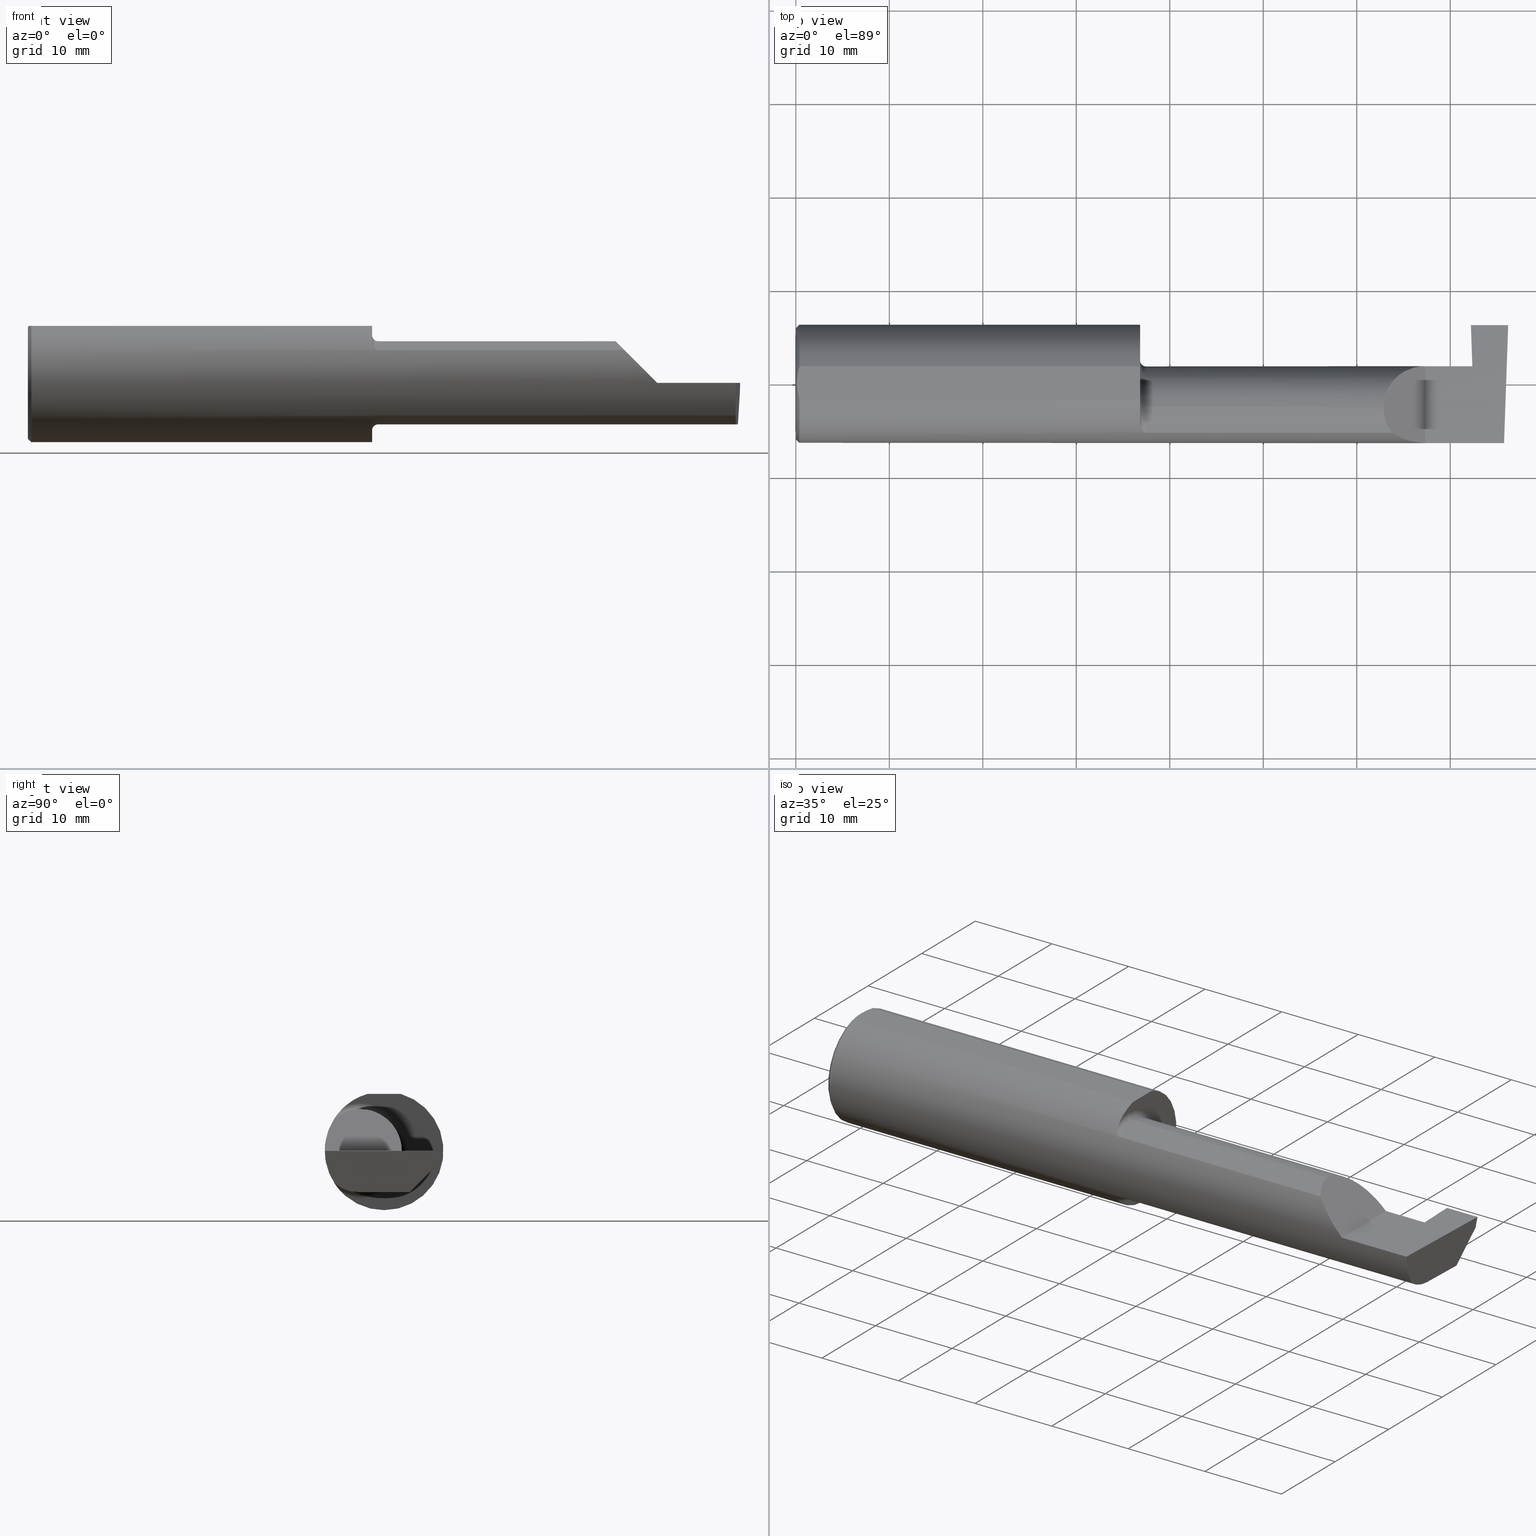
[diagram: canonical four-view strip — front | top / right | iso, engineering-drawing reading convention]
A machine part, canonical four-view strip (front | top / right | iso — engineering-drawing reading convention). The complete STEP part file that produces these views, byte-faithful:
ISO-10303-21;
HEADER;
FILE_DESCRIPTION (( 'STEP AP203' ),
    '1' );
FILE_NAME ('221562-GT156-24.STEP',
    '2024-07-22T23:13:39',
    ( '' ),
    ( '' ),
    'SwSTEP 2.0',
    'SolidWorks 2024',
    '' );
FILE_SCHEMA (( 'CONFIG_CONTROL_DESIGN' ));
ENDSEC;

DATA;
#1 = CARTESIAN_POINT ( 'NONE',  ( 0.004999999999999471013, 5.665694022114171174E-17, 0.2398500000000000076 ) ) ;
#2 = EDGE_CURVE ( 'NONE', #543, #658, #411, .T. ) ;
#3 = CARTESIAN_POINT ( 'NONE',  ( 1.450000000000000400, -0.1716188362992555616, -0.1820560320165479640 ) ) ;
#4 = CARTESIAN_POINT ( 'NONE',  ( 1.451849548162864822, -0.1805300287242673496, 0.1728462070311780341 ) ) ;
#5 = ORIENTED_EDGE ( 'NONE', *, *, #332, .T. ) ;
#6 = DIRECTION ( 'NONE',  ( 0.000000000000000000, 0.000000000000000000, 1.000000000000000000 ) ) ;
#7 = AXIS2_PLACEMENT_3D ( 'NONE', #449, #704, #393 ) ;
#8 = DIRECTION ( 'NONE',  ( -0.7071067811865495711, 0.000000000000000000, -0.7071067811865454633 ) ) ;
#9 = CARTESIAN_POINT ( 'NONE',  ( 1.474999999999999867, -0.2080850024789292485, 0.1382955322609664972 ) ) ;
#10 = CIRCLE ( 'NONE', #130, 0.2498499999999999888 ) ;
#11 = VERTEX_POINT ( 'NONE', #604 ) ;
#12 = CARTESIAN_POINT ( 'NONE',  ( 2.845037492458067696, 0.06794054266098431549, -0.04620338416404774079 ) ) ;
#13 = CONICAL_SURFACE ( 'NONE', #259, 0.2498499999999999888, 0.7853981633974485010 ) ;
#14 =( BOUNDED_CURVE ( )  B_SPLINE_CURVE ( 3, ( #273, #516, #71, #194 ),
 .UNSPECIFIED., .F., .T. ) 
 B_SPLINE_CURVE_WITH_KNOTS ( ( 4, 4 ),
 ( 5.623622464215678463, 6.283185307179586232 ),
 .UNSPECIFIED. ) 
 CURVE ( )  GEOMETRIC_REPRESENTATION_ITEM ( )  RATIONAL_B_SPLINE_CURVE ( ( 1.000000000000000000, 0.9640754331822828371, 0.9640754331822828371, 1.000000000000000000 ) ) 
 REPRESENTATION_ITEM ( '' )  );
#15 = PERSON_AND_ORGANIZATION_ROLE ( 'design_owner' ) ;
#16 = CARTESIAN_POINT ( 'NONE',  ( 2.860520154598983122, -0.2548677727907585067, 1.708135462159229949E-17 ) ) ;
#17 = ORIENTED_EDGE ( 'NONE', *, *, #698, .F. ) ;
#18 = ADVANCED_FACE ( 'NONE', ( #784 ), #124, .T. ) ;
#19 = CALENDAR_DATE ( 2024, 22, 7 ) ;
#20 = CARTESIAN_POINT ( 'NONE',  ( 2.159000000000000252, -0.2080850024789291652, 0.1382955322609665250 ) ) ;
#21 = ORIENTED_EDGE ( 'NONE', *, *, #153, .F. ) ;
#22 = CARTESIAN_POINT ( 'NONE',  ( 2.854036419112083944, -0.01887343476265484349, -0.1749999999999999889 ) ) ;
#23 = LINE ( 'NONE', #433, #718 ) ;
#24 = EDGE_CURVE ( 'NONE', #442, #62, #471, .T. ) ;
#25 = ORIENTED_EDGE ( 'NONE', *, *, #174, .F. ) ;
#26 = VECTOR ( 'NONE', #617, 39.37007874015748854 ) ;
#27 = CARTESIAN_POINT ( 'NONE',  ( 1.474999999999999867, -0.1008499999999999674, 0.000000000000000000 ) ) ;
#28 = SECURITY_CLASSIFICATION ( '', '', #51 ) ;
#29 = VECTOR ( 'NONE', #769, 39.37007874015748854 ) ;
#30 = APPROVAL_ROLE ( '' ) ;
#31 = DIRECTION ( 'NONE',  ( -1.000000000000000000, -0.000000000000000000, -0.000000000000000000 ) ) ;
#32 = ORIENTED_EDGE ( 'NONE', *, *, #170, .T. ) ;
#33 = PERSON_AND_ORGANIZATION ( #162, #761 ) ;
#34 = DIRECTION ( 'NONE',  ( 0.000000000000000000, -0.9659258262890680902, 0.2588190451025216832 ) ) ;
#35 = EDGE_CURVE ( 'NONE', #268, #240, #403, .T. ) ;
#36 = VERTEX_POINT ( 'NONE', #294 ) ;
#37 = ORIENTED_EDGE ( 'NONE', *, *, #360, .T. ) ;
#38 = CIRCLE ( 'NONE', #229, 0.02499999999999980016 ) ;
#39 = AXIS2_PLACEMENT_3D ( 'NONE', #68, #600, #368 ) ;
#40 = APPROVAL_ROLE ( '' ) ;
#41 = ORIENTED_EDGE ( 'NONE', *, *, #708, .T. ) ;
#42 = ADVANCED_FACE ( 'NONE', ( #476 ), #725, .F. ) ;
#43 = DATE_AND_TIME ( #526, #128 ) ;
#44 = ORIENTED_EDGE ( 'NONE', *, *, #342, .T. ) ;
#45 = DIRECTION ( 'NONE',  ( 0.04426438787457080692, 0.001217521851804792771, -0.9990191097304544909 ) ) ;
#46 = EDGE_CURVE ( 'NONE', #780, #36, #409, .T. ) ;
#47 = CARTESIAN_POINT ( 'NONE',  ( 0.004999999999999471013, 5.665694022114171174E-17, 0.2398500000000000076 ) ) ;
#48 = AXIS2_PLACEMENT_3D ( 'NONE', #703, #626, #277 ) ;
#49 = CARTESIAN_POINT ( 'NONE',  ( 0.000000000000000000, -0.06997856814768359246, 0.2398500000000000076 ) ) ;
#50 = VECTOR ( 'NONE', #495, 39.37007874015748143 ) ;
#51 = SECURITY_CLASSIFICATION_LEVEL ( 'unclassified' ) ;
#52 = AXIS2_PLACEMENT_3D ( 'NONE', #606, #60, #790 ) ;
#53 = EDGE_CURVE ( 'NONE', #439, #644, #693, .T. ) ;
#54 = ORIENTED_EDGE ( 'NONE', *, *, #472, .T. ) ;
#55 = CARTESIAN_POINT ( 'NONE',  ( 0.01499999999999999944, 0.000000000000000000, 0.000000000000000000 ) ) ;
#56 = DIRECTION ( 'NONE',  ( -0.000000000000000000, 1.000000000000000000, -0.000000000000000000 ) ) ;
#57 = DIRECTION ( 'NONE',  ( -1.000000000000000000, -0.000000000000000000, -0.000000000000000000 ) ) ;
#58 = EDGE_CURVE ( 'NONE', #181, #777, #781, .T. ) ;
#59 = CARTESIAN_POINT ( 'NONE',  ( 2.851697418530417139, 0.1731499264776300839, -0.1750000000000000444 ) ) ;
#60 = DIRECTION ( 'NONE',  ( -1.000000000000000000, -0.000000000000000000, -0.000000000000000000 ) ) ;
#61 = CARTESIAN_POINT ( 'NONE',  ( 1.451385488563269988, -0.1808287530430325030, -0.1728790649396287349 ) ) ;
#62 = VERTEX_POINT ( 'NONE', #334 ) ;
#63 = PLANE ( 'NONE',  #746 ) ;
#64 = VECTOR ( 'NONE', #137, 39.37007874015748143 ) ;
#65 = FACE_OUTER_BOUND ( 'NONE', #405, .T. ) ;
#66 = DIRECTION ( 'NONE',  ( 0.000000000000000000, 0.000000000000000000, 1.000000000000000000 ) ) ;
#67 = VECTOR ( 'NONE', #624, 39.37007874015748143 ) ;
#68 = CARTESIAN_POINT ( 'NONE',  ( 1.474999999999999867, -0.1008499999999999674, 0.000000000000000000 ) ) ;
#69 = ADVANCED_FACE ( 'NONE', ( #445 ), #618, .F. ) ;
#70 = CARTESIAN_POINT ( 'NONE',  ( 2.977412177158956563, -0.2496672875357696664, -0.1999314649951114686 ) ) ;
#71 = CARTESIAN_POINT ( 'NONE',  ( 2.475000000000001421, -0.1400387324517231857, 0.1750000000000000167 ) ) ;
#72 = EDGE_LOOP ( 'NONE', ( #227, #559, #770, #612, #763 ) ) ;
#73 = LINE ( 'NONE', #477, #711 ) ;
#74 = CARTESIAN_POINT ( 'NONE',  ( 2.856013260303944534, 0.07439359513054549788, -0.1998782938404957410 ) ) ;
#75 = PRODUCT_DEFINITION ( 'UNKNOWN', '', #191, #267 ) ;
#76 = DIRECTION ( 'NONE',  ( -0.03487823687206274836, -0.001217974870087560951, 0.9993908270190957621 ) ) ;
#77 = ORIENTED_EDGE ( 'NONE', *, *, #312, .F. ) ;
#78 = CARTESIAN_POINT ( 'NONE',  ( 2.850564601548837729, 0.04629714416892579537, -0.1252712066320192386 ) ) ;
#79 = DIRECTION ( 'NONE',  ( 0.000000000000000000, 0.000000000000000000, 1.000000000000000000 ) ) ;
#80 = CARTESIAN_POINT ( 'NONE',  ( 1.462616400345755352, -0.2024684335577100758, 0.1464246884265640869 ) ) ;
#81 = ADVANCED_FACE ( 'NONE', ( #568 ), #203, .F. ) ;
#82 = EDGE_LOOP ( 'NONE', ( #723, #315, #145, #99, #502, #464, #753 ) ) ;
#83 = CARTESIAN_POINT ( 'NONE',  ( 2.998364291748493393, 0.2348243371481683328, -0.04599999999999999922 ) ) ;
#84 = PERSON_AND_ORGANIZATION_ROLE ( 'creator' ) ;
#85 = DIRECTION ( 'NONE',  ( 0.000000000000000000, 0.000000000000000000, -1.000000000000000000 ) ) ;
#86 = EDGE_LOOP ( 'NONE', ( #523, #165, #732, #232 ) ) ;
#87 = DIRECTION ( 'NONE',  ( 0.000000000000000000, 0.000000000000000000, 1.000000000000000000 ) ) ;
#88 = EDGE_CURVE ( 'NONE', #208, #228, #631, .T. ) ;
#89 = DIRECTION ( 'NONE',  ( -1.000000000000000000, -0.000000000000000000, -0.000000000000000000 ) ) ;
#90 = ORIENTED_EDGE ( 'NONE', *, *, #778, .F. ) ;
#91 = DIRECTION ( 'NONE',  ( -1.000000000000000000, -0.000000000000000000, -0.000000000000000000 ) ) ;
#92 =( NAMED_UNIT ( * ) SI_UNIT ( $, .STERADIAN. ) SOLID_ANGLE_UNIT ( ) );
#93 = DIRECTION ( 'NONE',  ( -1.000000000000000000, -0.000000000000000000, -0.000000000000000000 ) ) ;
#94 = ORIENTED_EDGE ( 'NONE', *, *, #170, .F. ) ;
#95 = LOCAL_TIME ( 16, 13, 39.00000000000000000, #328 ) ;
#96 = AXIS2_PLACEMENT_3D ( 'NONE', #412, #340, #151 ) ;
#97 = EDGE_CURVE ( 'NONE', #777, #240, #135, .T. ) ;
#98 = LINE ( 'NONE', #109, #444 ) ;
#99 = ORIENTED_EDGE ( 'NONE', *, *, #686, .F. ) ;
#100 = LINE ( 'NONE', #589, #192 ) ;
#101 =( BOUNDED_CURVE ( )  B_SPLINE_CURVE ( 3, ( #713, #458, #469, #721 ),
 .UNSPECIFIED., .F., .T. ) 
 B_SPLINE_CURVE_WITH_KNOTS ( ( 4, 4 ),
 ( 0.2675252011803429530, 0.9270880441442505004 ),
 .UNSPECIFIED. ) 
 CURVE ( )  GEOMETRIC_REPRESENTATION_ITEM ( )  RATIONAL_B_SPLINE_CURVE ( ( 1.000000000000000000, 0.9640754331822828371, 0.9640754331822828371, 1.000000000000000000 ) ) 
 REPRESENTATION_ITEM ( '' )  );
#102 = CC_DESIGN_DATE_AND_TIME_ASSIGNMENT ( #107, #104, ( #28 ) ) ;
#103 = ORIENTED_EDGE ( 'NONE', *, *, #530, .T. ) ;
#104 = DATE_TIME_ROLE ( 'classification_date' ) ;
#105 = EDGE_CURVE ( 'NONE', #479, #442, #514, .T. ) ;
#106 = ORIENTED_EDGE ( 'NONE', *, *, #641, .T. ) ;
#107 = DATE_AND_TIME ( #223, #645 ) ;
#108 = VERTEX_POINT ( 'NONE', #374 ) ;
#109 = CARTESIAN_POINT ( 'NONE',  ( 1.450000000000000178, -0.1008499999999999536, -0.1749999999999999889 ) ) ;
#110 = ADVANCED_FACE ( 'NONE', ( #633 ), #501, .F. ) ;
#111 = ORIENTED_EDGE ( 'NONE', *, *, #270, .T. ) ;
#112 = FACE_OUTER_BOUND ( 'NONE', #224, .T. ) ;
#113 = EDGE_CURVE ( 'NONE', #155, #659, #475, .T. ) ;
#114 = ORIENTED_EDGE ( 'NONE', *, *, #504, .T. ) ;
#115 = DIRECTION ( 'NONE',  ( -1.000000000000000000, -0.000000000000000000, -0.000000000000000000 ) ) ;
#116 = CIRCLE ( 'NONE', #218, 0.2348499999999999754 ) ;
#117 = DIRECTION ( 'NONE',  ( 8.522090287130865539E-05, 0.9999999963686987403, -2.446351747218454245E-16 ) ) ;
#118 = CIRCLE ( 'NONE', #39, 0.1749999999999999889 ) ;
#119 = ORIENTED_EDGE ( 'NONE', *, *, #387, .F. ) ;
#120 = CARTESIAN_POINT ( 'NONE',  ( 2.825000000000000178, 0.2348243371481683328, -0.04599999999999999922 ) ) ;
#121 = ORIENTED_EDGE ( 'NONE', *, *, #125, .F. ) ;
#122 = DIRECTION ( 'NONE',  ( 1.000000000000000000, -0.000000000000000000, -0.000000000000000000 ) ) ;
#123 = LINE ( 'NONE', #611, #178 ) ;
#124 = CYLINDRICAL_SURFACE ( 'NONE', #372, 0.1749999999999999889 ) ;
#125 = EDGE_CURVE ( 'NONE', #493, #62, #573, .T. ) ;
#126 = DIRECTION ( 'NONE',  ( 1.000000000000000000, 0.000000000000000000, 0.000000000000000000 ) ) ;
#127 = VECTOR ( 'NONE', #305, 39.37007874015748143 ) ;
#128 = LOCAL_TIME ( 16, 13, 39.00000000000000000, #288 ) ;
#129 = CARTESIAN_POINT ( 'NONE',  ( 2.547487373415292744, 0.07414999999999996594, 0.1025126265847083745 ) ) ;
#130 = AXIS2_PLACEMENT_3D ( 'NONE', #705, #242, #370 ) ;
#131 = ORIENTED_EDGE ( 'NONE', *, *, #282, .T. ) ;
#132 = CARTESIAN_POINT ( 'NONE',  ( 1.450000000000000400, -0.1008499999999999674, 0.000000000000000000 ) ) ;
#133 = PRODUCT_DEFINITION_SHAPE ( 'NONE', 'NONE',  #75 ) ;
#134 = CARTESIAN_POINT ( 'NONE',  ( 1.468863362722770516, -0.2068301641248769807, -0.1401678546132362202 ) ) ;
#135 = LINE ( 'NONE', #20, #67 ) ;
#136 = ORIENTED_EDGE ( 'NONE', *, *, #551, .T. ) ;
#137 = DIRECTION ( 'NONE',  ( 1.000000000000000000, -2.395412621140289593E-16, 5.860015393549375139E-32 ) ) ;
#138 = CARTESIAN_POINT ( 'NONE',  ( 2.845037492458067696, 0.2348243371481683328, -0.04599999999999999922 ) ) ;
#139 = DIRECTION ( 'NONE',  ( 0.000000000000000000, -1.000000000000000000, 0.000000000000000000 ) ) ;
#140 = ORIENTED_EDGE ( 'NONE', *, *, #270, .F. ) ;
#141 = CARTESIAN_POINT ( 'NONE',  ( 1.450000000000000178, -0.2498499999999999888, 0.2398500000000000076 ) ) ;
#142 = EDGE_CURVE ( 'NONE', #240, #155, #14, .T. ) ;
#143 = CARTESIAN_POINT ( 'NONE',  ( 0.000000000000000000, 2.967931517733610643E-17, 0.2348499999999999754 ) ) ;
#144 = DIRECTION ( 'NONE',  ( -1.000000000000000000, 0.000000000000000000, 1.224646799147351482E-16 ) ) ;
#145 = ORIENTED_EDGE ( 'NONE', *, *, #530, .F. ) ;
#146 = DIRECTION ( 'NONE',  ( -1.000000000000000000, -0.000000000000000000, -0.000000000000000000 ) ) ;
#147 = CARTESIAN_POINT ( 'NONE',  ( 1.458182335268384477, -0.1972192205116128916, 0.1535061413537212038 ) ) ;
#148 = ORIENTED_EDGE ( 'NONE', *, *, #463, .T. ) ;
#149 = CARTESIAN_POINT ( 'NONE',  ( 0.01499999999999999944, 0.000000000000000000, 0.000000000000000000 ) ) ;
#150 = LENGTH_MEASURE_WITH_UNIT ( LENGTH_MEASURE( 0.02539999999999999897 ), #210 );
#151 = DIRECTION ( 'NONE',  ( 0.000000000000000000, 0.000000000000000000, 1.000000000000000000 ) ) ;
#152 = ORIENTED_EDGE ( 'NONE', *, *, #581, .T. ) ;
#153 = EDGE_CURVE ( 'NONE', #543, #644, #23, .T. ) ;
#154 = VECTOR ( 'NONE', #797, 39.37007874015748854 ) ;
#155 = VERTEX_POINT ( 'NONE', #351 ) ;
#156 = CC_DESIGN_APPROVAL ( #545, ( #28 ) ) ;
#157 = AXIS2_PLACEMENT_3D ( 'NONE', #560, #115, #6 ) ;
#158 = VECTOR ( 'NONE', #311, 39.37007874015748143 ) ;
#159 = PERSON_AND_ORGANIZATION ( #162, #761 ) ;
#160 = DIRECTION ( 'NONE',  ( 0.06975638345030489573, 0.000000000000000000, -0.9975640565737791121 ) ) ;
#161 = ORIENTED_EDGE ( 'NONE', *, *, #222, .T. ) ;
#162 = PERSON ( 'UNSPECIFIED', 'UNSPECIFIED', 'UNSPECIFIED', ('UNSPECIFIED'), ('UNSPECIFIED'), ('UNSPECIFIED') ) ;
#163 = EDGE_LOOP ( 'NONE', ( #148, #462, #706, #594, #744, #245 ) ) ;
#164 = APPROVAL_DATE_TIME ( #43, #775 ) ;
#165 = ORIENTED_EDGE ( 'NONE', *, *, #35, .F. ) ;
#166 = AXIS2_PLACEMENT_3D ( 'NONE', #149, #327, #214 ) ;
#167 = APPROVAL_PERSON_ORGANIZATION ( #33, #425, #30 ) ;
#168 = AXIS2_PLACEMENT_3D ( 'NONE', #386, #89, #564 ) ;
#169 = ORIENTED_EDGE ( 'NONE', *, *, #58, .F. ) ;
#170 = EDGE_CURVE ( 'NONE', #302, #451, #98, .T. ) ;
#171 = CARTESIAN_POINT ( 'NONE',  ( 1.450000000000000178, 0.000000000000000000, 0.000000000000000000 ) ) ;
#172 = PERSON_AND_ORGANIZATION_ROLE ( 'creator' ) ;
#173 = DIRECTION ( 'NONE',  ( -0.03487823687994804495, 0.9993915692020550745, -2.444309580554223547E-16 ) ) ;
#174 = EDGE_CURVE ( 'NONE', #268, #659, #404, .T. ) ;
#175 = DIRECTION ( 'NONE',  ( 0.9975640529689503433, -8.501330957466778798E-05, 0.06975638319823103395 ) ) ;
#176 = CARTESIAN_POINT ( 'NONE',  ( 0.000000000000000000, 0.000000000000000000, 0.000000000000000000 ) ) ;
#177 = CARTESIAN_POINT ( 'NONE',  ( 2.843000000000000416, 0.2471500000000000086, -3.306546357697639493E-19 ) ) ;
#178 = VECTOR ( 'NONE', #483, 39.37007874015748143 ) ;
#179 = TOROIDAL_SURFACE ( 'NONE', #96, 0.1999999999999999833, 0.02499999999999980710 ) ;
#180 = DIRECTION ( 'NONE',  ( 0.000000000000000000, 0.001218716374663539022, -0.9999992573649232330 ) ) ;
#181 = VERTEX_POINT ( 'NONE', #292 ) ;
#182 = DIRECTION ( 'NONE',  ( 0.7071067811865473507, 0.000000000000000000, -0.7071067811865476838 ) ) ;
#183 = ADVANCED_FACE ( 'NONE', ( #661 ), #179, .F. ) ;
#184 = CARTESIAN_POINT ( 'NONE',  ( 0.01499999999999998036, 0.06997856814768359246, 0.2398500000000000076 ) ) ;
#185 = EDGE_LOOP ( 'NONE', ( #750, #32, #140, #424, #330, #44, #510, #17 ) ) ;
#186 = FACE_OUTER_BOUND ( 'NONE', #185, .T. ) ;
#187 = CARTESIAN_POINT ( 'NONE',  ( 2.845037492458067696, 0.06794054266098431549, -0.04620338416404774079 ) ) ;
#188 = DIRECTION ( 'NONE',  ( 1.000000000000000000, 0.000000000000000000, 0.000000000000000000 ) ) ;
#189 = ORIENTED_EDGE ( 'NONE', *, *, #396, .T. ) ;
#190 = DIRECTION ( 'NONE',  ( -0.9990483607430196145, 0.03488753751661385211, 0.02617694830785935456 ) ) ;
#191 = PRODUCT_DEFINITION_FORMATION_WITH_SPECIFIED_SOURCE ( 'ANY', '', #198, .NOT_KNOWN. ) ;
#192 = VECTOR ( 'NONE', #461, 39.37007874015748854 ) ;
#193 = LINE ( 'NONE', #419, #26 ) ;
#194 = CARTESIAN_POINT ( 'NONE',  ( 2.475000000000001421, -0.1008499999999999674, 0.1749999999999999889 ) ) ;
#195 = AXIS2_PLACEMENT_3D ( 'NONE', #561, #747, #436 ) ;
#196 = ORIENTED_EDGE ( 'NONE', *, *, #791, .T. ) ;
#197 = CARTESIAN_POINT ( 'NONE',  ( 1.474999999999999867, -0.1008499999999999536, -0.1749999999999999889 ) ) ;
#198 = PRODUCT ( '221562-GT156-24', '221562-GT156-24', '', ( #567 ) ) ;
#199 = CARTESIAN_POINT ( 'NONE',  ( 1.471700027347579542, -0.2077785947292766777, -0.1387580622202828073 ) ) ;
#200 = EDGE_LOOP ( 'NONE', ( #341, #595, #310, #684, #169, #593, #575, #406, #326, #525, #446, #284, #489, #189 ) ) ;
#201 = CARTESIAN_POINT ( 'NONE',  ( 4.499279347985559139E-32, -0.2498499999999999610, 3.673940397442053459E-16 ) ) ;
#202 = ADVANCED_FACE ( 'NONE', ( #394 ), #234, .F. ) ;
#203 = PLANE ( 'NONE',  #287 ) ;
#204 = EDGE_LOOP ( 'NONE', ( #286, #114, #520, #670, #689 ) ) ;
#205 = FACE_OUTER_BOUND ( 'NONE', #590, .T. ) ;
#206 =( NAMED_UNIT ( * ) PLANE_ANGLE_UNIT ( ) SI_UNIT ( $, .RADIAN. ) );
#207 = CARTESIAN_POINT ( 'NONE',  ( 1.467647060162628136, -0.2062109266231179627, 0.1410799729252294465 ) ) ;
#208 = VERTEX_POINT ( 'NONE', #652 ) ;
#209 = DIRECTION ( 'NONE',  ( 0.000000000000000000, -0.7071067811865463515, 0.7071067811865486830 ) ) ;
#210 =( LENGTH_UNIT ( ) NAMED_UNIT ( * ) SI_UNIT ( $, .METRE. ) );
#211 = CARTESIAN_POINT ( 'NONE',  ( 2.511704467739034552, -0.2080850024789292485, 0.1382955322609664139 ) ) ;
#212 = ADVANCED_FACE ( 'NONE', ( #112 ), #531, .F. ) ;
#213 = ORIENTED_EDGE ( 'NONE', *, *, #53, .T. ) ;
#214 = DIRECTION ( 'NONE',  ( 0.000000000000000000, 0.000000000000000000, 1.000000000000000000 ) ) ;
#215 = CARTESIAN_POINT ( 'NONE',  ( 2.854029432995154991, -0.1008500000000000091, -0.1749999999999999889 ) ) ;
#216 = ORIENTED_EDGE ( 'NONE', *, *, #468, .F. ) ;
#217 = LINE ( 'NONE', #49, #743 ) ;
#218 = AXIS2_PLACEMENT_3D ( 'NONE', #339, #272, #515 ) ;
#219 = ORIENTED_EDGE ( 'NONE', *, *, #88, .F. ) ;
#220 =( GEOMETRIC_REPRESENTATION_CONTEXT ( 3 ) GLOBAL_UNCERTAINTY_ASSIGNED_CONTEXT ( ( #574 ) ) GLOBAL_UNIT_ASSIGNED_CONTEXT ( ( #762, #206, #92 ) ) REPRESENTATION_CONTEXT ( 'NONE', 'WORKASPACE' ) );
#221 = AXIS2_PLACEMENT_3D ( 'NONE', #745, #237, #426 ) ;
#222 = EDGE_CURVE ( 'NONE', #62, #108, #300, .T. ) ;
#223 = CALENDAR_DATE ( 2024, 22, 7 ) ;
#224 = EDGE_LOOP ( 'NONE', ( #41, #434, #534, #5 ) ) ;
#225 = EDGE_CURVE ( 'NONE', #739, #11, #217, .T. ) ;
#226 = SHAPE_DEFINITION_REPRESENTATION ( #133, #619 ) ;
#227 = ORIENTED_EDGE ( 'NONE', *, *, #719, .F. ) ;
#228 = VERTEX_POINT ( 'NONE', #650 ) ;
#229 = AXIS2_PLACEMENT_3D ( 'NONE', #453, #457, #696 ) ;
#230 = PERSON_AND_ORGANIZATION ( #162, #761 ) ;
#231 = EDGE_CURVE ( 'NONE', #789, #320, #101, .T. ) ;
#232 = ORIENTED_EDGE ( 'NONE', *, *, #113, .F. ) ;
#233 = CARTESIAN_POINT ( 'NONE',  ( 0.004999999999999748569, 0.01185123536186986730, 0.2398500000000000354 ) ) ;
#234 = PLANE ( 'NONE',  #296 ) ;
#235 = COORDINATED_UNIVERSAL_TIME_OFFSET ( 8, 0, .BEHIND. ) ;
#236 = CARTESIAN_POINT ( 'NONE',  ( 2.511704467739034552, -0.2080850024789292485, 0.1382955322609664139 ) ) ;
#237 = DIRECTION ( 'NONE',  ( -1.000000000000000000, -0.000000000000000000, -0.000000000000000000 ) ) ;
#238 = CARTESIAN_POINT ( 'NONE',  ( 0.01499999999999998036, 0.06997856814768359246, 0.2398500000000000076 ) ) ;
#239 = DIRECTION ( 'NONE',  ( -1.000000000000000000, -0.000000000000000000, -0.000000000000000000 ) ) ;
#240 = VERTEX_POINT ( 'NONE', #211 ) ;
#241 = LINE ( 'NONE', #120, #566 ) ;
#242 = DIRECTION ( 'NONE',  ( 1.000000000000000000, 0.000000000000000000, 0.000000000000000000 ) ) ;
#243 = EDGE_CURVE ( 'NONE', #11, #181, #535, .T. ) ;
#244 = CARTESIAN_POINT ( 'NONE',  ( 2.843689495973014125, 0.07413112468343002748, -0.01577237022675139974 ) ) ;
#245 = ORIENTED_EDGE ( 'NONE', *, *, #2, .T. ) ;
#246 = DIRECTION ( 'NONE',  ( -1.000000000000000000, -0.000000000000000000, -0.000000000000000000 ) ) ;
#247 = DIRECTION ( 'NONE',  ( -2.395410842222853988E-16, -0.9999992573649233440, -0.001218716374663539239 ) ) ;
#248 = CARTESIAN_POINT ( 'NONE',  ( 2.845037492458067696, 0.07420629955631165287, -0.04619574797784884584 ) ) ;
#249 = EDGE_CURVE ( 'NONE', #302, #108, #415, .T. ) ;
#250 = DIRECTION ( 'NONE',  ( -0.03489949670249939406, -0.9993908270190957621, 2.445004146800611929E-16 ) ) ;
#251 = CARTESIAN_POINT ( 'NONE',  ( 2.844372681961406357, 0.07204909126152571341, -0.03119400421533615256 ) ) ;
#252 = CARTESIAN_POINT ( 'NONE',  ( 3.000000000000000444, -0.2500000000000000555, 0.000000000000000000 ) ) ;
#253 = EDGE_LOOP ( 'NONE', ( #152, #629, #161, #625 ) ) ;
#254 = CARTESIAN_POINT ( 'NONE',  ( 0.01499999999999999944, -0.06997856814768359246, 0.2398500000000000076 ) ) ;
#255 = AXIS2_PLACEMENT_3D ( 'NONE', #788, #239, #607 ) ;
#256 = VECTOR ( 'NONE', #697, 39.37007874015748854 ) ;
#257 = CARTESIAN_POINT ( 'NONE',  ( 2.854047045968829632, 0.1058243371481679407, -0.1749999999999999334 ) ) ;
#258 = CARTESIAN_POINT ( 'NONE',  ( 1.473329956043142541, -0.2080850024798588660, 0.1382955322595677550 ) ) ;
#259 = AXIS2_PLACEMENT_3D ( 'NONE', #55, #126, #365 ) ;
#260 = EDGE_LOOP ( 'NONE', ( #517, #506, #717, #466, #77 ) ) ;
#261 = FACE_OUTER_BOUND ( 'NONE', #200, .T. ) ;
#262 = FACE_OUTER_BOUND ( 'NONE', #291, .T. ) ;
#263 = CARTESIAN_POINT ( 'NONE',  ( 1.452968662030528879, -0.1849684355203377040, 0.1680843977756268370 ) ) ;
#264 = DIRECTION ( 'NONE',  ( 0.000000000000000000, 0.000000000000000000, 1.000000000000000000 ) ) ;
#265 = APPROVAL_STATUS ( 'not_yet_approved' ) ;
#266 = DIRECTION ( 'NONE',  ( -1.224646799147351482E-16, 0.000000000000000000, -1.000000000000000000 ) ) ;
#267 = DESIGN_CONTEXT ( 'detailed design', #410, 'design' ) ;
#268 = VERTEX_POINT ( 'NONE', #584 ) ;
#269 = DIRECTION ( 'NONE',  ( -1.000000000000000000, -0.000000000000000000, -0.000000000000000000 ) ) ;
#270 = EDGE_CURVE ( 'NONE', #228, #451, #498, .T. ) ;
#271 = VECTOR ( 'NONE', #57, 39.37007874015748143 ) ;
#272 = DIRECTION ( 'NONE',  ( -1.000000000000000000, -0.000000000000000000, -0.000000000000000000 ) ) ;
#273 = CARTESIAN_POINT ( 'NONE',  ( 2.511704467739034552, -0.2080850024789292485, 0.1382955322609664139 ) ) ;
#274 = LOCAL_TIME ( 16, 13, 39.00000000000000000, #283 ) ;
#275 = AXIS2_PLACEMENT_3D ( 'NONE', #587, #34, #522 ) ;
#276 = ORIENTED_EDGE ( 'NONE', *, *, #2, .F. ) ;
#277 = DIRECTION ( 'NONE',  ( 0.000000000000000000, 0.000000000000000000, -1.000000000000000000 ) ) ;
#278 = DIMENSIONAL_EXPONENTS ( 1.000000000000000000, 0.000000000000000000, 0.000000000000000000, 0.000000000000000000, 0.000000000000000000, 0.000000000000000000, 0.000000000000000000 ) ;
#279 = CARTESIAN_POINT ( 'NONE',  ( 1.474999999999999867, -0.2080850024789292485, 0.1382955322609664972 ) ) ;
#280 = CARTESIAN_POINT ( 'NONE',  ( 1.450000000000000400, -0.1008499999999999674, 0.000000000000000000 ) ) ;
#281 = ORIENTED_EDGE ( 'NONE', *, *, #153, .T. ) ;
#282 = EDGE_CURVE ( 'NONE', #789, #714, #643, .T. ) ;
#283 = COORDINATED_UNIVERSAL_TIME_OFFSET ( 8, 0, .BEHIND. ) ;
#284 = ORIENTED_EDGE ( 'NONE', *, *, #667, .F. ) ;
#285 = CIRCLE ( 'NONE', #166, 0.2498499999999999888 ) ;
#286 = ORIENTED_EDGE ( 'NONE', *, *, #225, .T. ) ;
#287 = AXIS2_PLACEMENT_3D ( 'NONE', #252, #266, #144 ) ;
#288 = COORDINATED_UNIVERSAL_TIME_OFFSET ( 8, 0, .BEHIND. ) ;
#289 = ORIENTED_EDGE ( 'NONE', *, *, #698, .T. ) ;
#290 = APPROVAL_STATUS ( 'not_yet_approved' ) ;
#291 = EDGE_LOOP ( 'NONE', ( #289, #716, #121 ) ) ;
#292 = CARTESIAN_POINT ( 'NONE',  ( 1.450000000000000622, -0.1616050818046604332, 0.1905487340154980169 ) ) ;
#293 = EDGE_CURVE ( 'NONE', #208, #702, #357, .T. ) ;
#294 = CARTESIAN_POINT ( 'NONE',  ( 0.000000000000000000, 0.000000000000000000, -0.2348499999999999754 ) ) ;
#295 = APPROVAL_PERSON_ORGANIZATION ( #230, #545, #654 ) ;
#296 = AXIS2_PLACEMENT_3D ( 'NONE', #353, #175, #160 ) ;
#297 = AXIS2_PLACEMENT_3D ( 'NONE', #304, #190, #679 ) ;
#298 = ORIENTED_EDGE ( 'NONE', *, *, #472, .F. ) ;
#299 = LINE ( 'NONE', #540, #158 ) ;
#300 = LINE ( 'NONE', #782, #29 ) ;
#301 = CARTESIAN_POINT ( 'NONE',  ( 1.464302603425052807, -0.2041009206016212441, -0.1441313430770041482 ) ) ;
#302 = VERTEX_POINT ( 'NONE', #215 ) ;
#303 = EDGE_CURVE ( 'NONE', #488, #694, #10, .T. ) ;
#304 = CARTESIAN_POINT ( 'NONE',  ( 2.994767799596354418, 0.2473327124642303587, -0.1999314649951115241 ) ) ;
#305 = DIRECTION ( 'NONE',  ( 1.000000000000000000, -0.000000000000000000, -0.000000000000000000 ) ) ;
#306 = CARTESIAN_POINT ( 'NONE',  ( 1.450000000000000178, -0.1008499999999999674, 0.000000000000000000 ) ) ;
#307 = LINE ( 'NONE', #740, #648 ) ;
#308 = ADVANCED_FACE ( 'NONE', ( #622 ), #555, .T. ) ;
#309 = LINE ( 'NONE', #741, #127 ) ;
#310 = ORIENTED_EDGE ( 'NONE', *, *, #35, .T. ) ;
#311 = DIRECTION ( 'NONE',  ( -1.000000000000000000, 2.393920122924607177E-16, 1.224646799147351482E-16 ) ) ;
#312 = EDGE_CURVE ( 'NONE', #36, #773, #541, .T. ) ;
#313 = CARTESIAN_POINT ( 'NONE',  ( 2.650000000000000355, -0.2500000000000000555, 4.286263797015727350E-17 ) ) ;
#314 = DIRECTION ( 'NONE',  ( 0.000000000000000000, -1.000000000000000000, 2.446352684939717727E-16 ) ) ;
#315 = ORIENTED_EDGE ( 'NONE', *, *, #418, .F. ) ;
#316 = CARTESIAN_POINT ( 'NONE',  ( 0.01180609504125294286, -0.05857511741890332468, 0.2398500000000000354 ) ) ;
#317 = EDGE_CURVE ( 'NONE', #678, #354, #325, .T. ) ;
#318 = FACE_OUTER_BOUND ( 'NONE', #455, .T. ) ;
#319 = CARTESIAN_POINT ( 'NONE',  ( 1.450000000000000622, -0.1616050818046604332, 0.1905487340154980169 ) ) ;
#320 = VERTEX_POINT ( 'NONE', #473 ) ;
#321 = CARTESIAN_POINT ( 'NONE',  ( 2.845037492458067696, 0.06794054266098431549, -0.04620338416404774079 ) ) ;
#322 = AXIS2_PLACEMENT_3D ( 'NONE', #313, #8, #373 ) ;
#323 = VECTOR ( 'NONE', #173, 39.37007874015748854 ) ;
#324 = DIRECTION ( 'NONE',  ( 0.03492071764873293238, 0.000000000000000000, -0.9993900857417474803 ) ) ;
#325 = B_SPLINE_CURVE_WITH_KNOTS ( 'NONE', 3,
 ( #238, #422, #672, #728, #233, #47 ),
 .UNSPECIFIED., .F., .F.,
 ( 4, 2, 4 ),
 ( 0.006064768674679246394, 0.006954995897674293680, 0.007845223120669340966 ),
 .UNSPECIFIED. ) ;
#326 = ORIENTED_EDGE ( 'NONE', *, *, #350, .F. ) ;
#327 = DIRECTION ( 'NONE',  ( -1.000000000000000000, -0.000000000000000000, -0.000000000000000000 ) ) ;
#328 = COORDINATED_UNIVERSAL_TIME_OFFSET ( 8, 0, .BEHIND. ) ;
#329 = CARTESIAN_POINT ( 'NONE',  ( 2.475000000000001421, -0.1008499999999999674, 0.1749999999999999889 ) ) ;
#330 = ORIENTED_EDGE ( 'NONE', *, *, #113, .T. ) ;
#331 = CARTESIAN_POINT ( 'NONE',  ( 0.000000000000000000, 0.06997856814768359246, 0.2398500000000000076 ) ) ;
#332 = EDGE_CURVE ( 'NONE', #798, #439, #100, .T. ) ;
#333 = DATE_AND_TIME ( #19, #95 ) ;
#334 = CARTESIAN_POINT ( 'NONE',  ( 2.845037492458067696, 0.07420629955631044550, -0.04619574797784882503 ) ) ;
#335 = EDGE_LOOP ( 'NONE', ( #196, #570 ) ) ;
#336 = DIRECTION ( 'NONE',  ( -0.04317993108637931121, -0.7064472710512011977, -0.7064472710511988662 ) ) ;
#337 = CARTESIAN_POINT ( 'NONE',  ( 2.159000000000000252, -0.2080850024789291652, -0.1382955322609665250 ) ) ;
#338 = ORIENTED_EDGE ( 'NONE', *, *, #486, .F. ) ;
#339 = CARTESIAN_POINT ( 'NONE',  ( 0.000000000000000000, 0.000000000000000000, 0.000000000000000000 ) ) ;
#340 = DIRECTION ( 'NONE',  ( -1.000000000000000000, -0.000000000000000000, -0.000000000000000000 ) ) ;
#341 = ORIENTED_EDGE ( 'NONE', *, *, #660, .T. ) ;
#342 = EDGE_CURVE ( 'NONE', #659, #479, #715, .T. ) ;
#343 = ORIENTED_EDGE ( 'NONE', *, *, #778, .T. ) ;
#344 = COORDINATED_UNIVERSAL_TIME_OFFSET ( 8, 0, .BEHIND. ) ;
#345 = VERTEX_POINT ( 'NONE', #544 ) ;
#346 = AXIS2_PLACEMENT_3D ( 'NONE', #398, #79, #627 ) ;
#347 = CC_DESIGN_PERSON_AND_ORGANIZATION_ASSIGNMENT ( #470, #348, ( #28 ) ) ;
#348 = PERSON_AND_ORGANIZATION_ROLE ( 'classification_officer' ) ;
#349 = ORIENTED_EDGE ( 'NONE', *, *, #293, .T. ) ;
#350 = EDGE_CURVE ( 'NONE', #678, #773, #385, .T. ) ;
#351 = CARTESIAN_POINT ( 'NONE',  ( 2.475000000000001421, -0.1008499999999999674, 0.1749999999999999889 ) ) ;
#352 = ORIENTED_EDGE ( 'NONE', *, *, #97, .T. ) ;
#353 = CARTESIAN_POINT ( 'NONE',  ( 2.854047045968830520, -2.765007429205793787, -0.1784987322808410659 ) ) ;
#354 = VERTEX_POINT ( 'NONE', #1 ) ;
#355 = VECTOR ( 'NONE', #623, 39.37007874015748143 ) ;
#356 = DIRECTION ( 'NONE',  ( 0.000000000000000000, 0.000000000000000000, 1.000000000000000000 ) ) ;
#357 = CIRCLE ( 'NONE', #467, 0.1999999999999999833 ) ;
#358 = VECTOR ( 'NONE', #452, 39.37007874015748143 ) ;
#359 = CARTESIAN_POINT ( 'NONE',  ( 1.474999999999999867, -0.1008499999999999674, 0.000000000000000000 ) ) ;
#360 = EDGE_CURVE ( 'NONE', #181, #208, #598, .T. ) ;
#361 = DIRECTION ( 'NONE',  ( 0.000000000000000000, 0.000000000000000000, 1.000000000000000000 ) ) ;
#362 = DIRECTION ( 'NONE',  ( 0.000000000000000000, 0.000000000000000000, -1.000000000000000000 ) ) ;
#363 = PLANE ( 'NONE',  #369 ) ;
#364 = ORIENTED_EDGE ( 'NONE', *, *, #58, .T. ) ;
#365 = DIRECTION ( 'NONE',  ( 0.000000000000000000, 0.000000000000000000, -1.000000000000000000 ) ) ;
#366 = DIRECTION ( 'NONE',  ( -1.000000000000000000, -0.000000000000000000, -0.000000000000000000 ) ) ;
#367 = DIRECTION ( 'NONE',  ( -1.000000000000000000, -0.000000000000000000, -0.000000000000000000 ) ) ;
#368 = DIRECTION ( 'NONE',  ( 0.000000000000000000, 0.000000000000000000, 1.000000000000000000 ) ) ;
#369 = AXIS2_PLACEMENT_3D ( 'NONE', #74, #247, #180 ) ;
#370 = DIRECTION ( 'NONE',  ( 0.000000000000000000, 0.000000000000000000, -1.000000000000000000 ) ) ;
#371 = CC_DESIGN_APPROVAL ( #425, ( #75 ) ) ;
#372 = AXIS2_PLACEMENT_3D ( 'NONE', #306, #367, #66 ) ;
#373 = DIRECTION ( 'NONE',  ( -0.7071067811865454633, 0.000000000000000000, 0.7071067811865495711 ) ) ;
#374 = CARTESIAN_POINT ( 'NONE',  ( 2.854044364828743241, 0.07436327552395319285, -0.1750000000000000444 ) ) ;
#375 = FACE_OUTER_BOUND ( 'NONE', #608, .T. ) ;
#376 = EDGE_CURVE ( 'NONE', #354, #739, #724, .T. ) ;
#377 = CARTESIAN_POINT ( 'NONE',  ( 0.01499999999999999944, 3.059780027669661931E-17, 0.2498499999999999888 ) ) ;
#378 = CARTESIAN_POINT ( 'NONE',  ( 2.475000000000001421, 0.001662626584708371512, 0.1749999999999999889 ) ) ;
#379 = ORIENTED_EDGE ( 'NONE', *, *, #533, .F. ) ;
#380 = LINE ( 'NONE', #141, #759 ) ;
#381 = CC_DESIGN_DATE_AND_TIME_ASSIGNMENT ( #333, #637, ( #75 ) ) ;
#382 = DIRECTION ( 'NONE',  ( 0.9987827668610290699, 0.03485699000042882800, 0.03489949669461413218 ) ) ;
#383 = ORIENTED_EDGE ( 'NONE', *, *, #708, .F. ) ;
#384 = CARTESIAN_POINT ( 'NONE',  ( 2.855145020370094322, 0.07436327552395197160, -0.1750000000000000167 ) ) ;
#385 = CIRCLE ( 'NONE', #157, 0.2498499999999999888 ) ;
#386 = CARTESIAN_POINT ( 'NONE',  ( 2.843000000000000416, -0.1008499999999999674, 0.000000000000000000 ) ) ;
#387 = EDGE_CURVE ( 'NONE', #451, #714, #118, .T. ) ;
#388 = EDGE_LOOP ( 'NONE', ( #639, #106, #216, #352 ) ) ;
#389 = CARTESIAN_POINT ( 'NONE',  ( 1.456159563508734323, -0.1933019864360847051, 0.1584298865564832959 ) ) ;
#390 = ORIENTED_EDGE ( 'NONE', *, *, #504, .F. ) ;
#391 = LINE ( 'NONE', #738, #271 ) ;
#392 = ADVANCED_FACE ( 'NONE', ( #186 ), #666, .T. ) ;
#393 = DIRECTION ( 'NONE',  ( 0.04426435506669150477, 0.000000000000000000, -0.9990198530912836050 ) ) ;
#394 = FACE_OUTER_BOUND ( 'NONE', #253, .T. ) ;
#395 = VERTEX_POINT ( 'NONE', #614 ) ;
#396 = EDGE_CURVE ( 'NONE', #789, #345, #591, .T. ) ;
#397 = AXIS2_PLACEMENT_3D ( 'NONE', #754, #146, #264 ) ;
#398 = CARTESIAN_POINT ( 'NONE',  ( 0.000000000000000000, 0.000000000000000000, 0.000000000000000000 ) ) ;
#399 = DIRECTION ( 'NONE',  ( 1.000000000000000000, 0.000000000000000000, 0.000000000000000000 ) ) ;
#400 = AXIS2_PLACEMENT_3D ( 'NONE', #171, #537, #474 ) ;
#401 = CIRCLE ( 'NONE', #52, 0.1749999999999999889 ) ;
#402 = ORIENTED_EDGE ( 'NONE', *, *, #667, .T. ) ;
#403 =( BOUNDED_CURVE ( )  B_SPLINE_CURVE ( 3, ( #414, #662, #416, #236 ),
 .UNSPECIFIED., .F., .F. ) 
 B_SPLINE_CURVE_WITH_KNOTS ( ( 4, 4 ),
 ( 4.712388980384689674, 5.298966915116346321 ),
 .UNSPECIFIED. ) 
 CURVE ( )  GEOMETRIC_REPRESENTATION_ITEM ( )  RATIONAL_B_SPLINE_CURVE ( ( 1.000000000000000000, 0.9715321379117538569, 0.9715321379117538569, 1.000000000000000000 ) ) 
 REPRESENTATION_ITEM ( '' )  );
#404 = LINE ( 'NONE', #454, #710 ) ;
#405 = EDGE_LOOP ( 'NONE', ( #794, #585, #768, #674, #21, #379 ) ) ;
#406 = ORIENTED_EDGE ( 'NONE', *, *, #558, .F. ) ;
#407 = EDGE_CURVE ( 'NONE', #798, #547, #241, .T. ) ;
#408 = ORIENTED_EDGE ( 'NONE', *, *, #342, .F. ) ;
#409 = CIRCLE ( 'NONE', #795, 0.2348499999999999754 ) ;
#410 = APPLICATION_CONTEXT ( 'configuration controlled 3d designs of mechanical parts and assemblies' ) ;
#411 = LINE ( 'NONE', #59, #323 ) ;
#412 = CARTESIAN_POINT ( 'NONE',  ( 1.474999999999999867, -0.1008499999999999674, 0.000000000000000000 ) ) ;
#413 = ADVANCED_FACE ( 'NONE', ( #430 ), #13, .T. ) ;
#414 = CARTESIAN_POINT ( 'NONE',  ( 2.650000000000000355, -0.2498499999999999610, 4.286263797015727350E-17 ) ) ;
#415 = LINE ( 'NONE', #664, #733 ) ;
#416 = CARTESIAN_POINT ( 'NONE',  ( 2.552984868485333347, -0.2355204011147992438, 0.09701513151466735485 ) ) ;
#417 = DIRECTION ( 'NONE',  ( 1.000000000000000000, 0.000000000000000000, 0.000000000000000000 ) ) ;
#418 = EDGE_CURVE ( 'NONE', #653, #320, #307, .T. ) ;
#419 = CARTESIAN_POINT ( 'NONE',  ( 2.999793790066964672, 0.2455961323656265238, -0.005799112959718751882 ) ) ;
#420 = EDGE_LOOP ( 'NONE', ( #538, #298, #276, #281, #634 ) ) ;
#421 = CARTESIAN_POINT ( 'NONE',  ( 2.980479240051444378, -0.2080850024789291652, -0.1382955322609665250 ) ) ;
#422 = CARTESIAN_POINT ( 'NONE',  ( 0.01181966702888962925, 0.05862357455657477012, 0.2398500000000000631 ) ) ;
#423 = CARTESIAN_POINT ( 'NONE',  ( 1.474999999999999867, -0.2080850024789291375, -0.1382955322609665805 ) ) ;
#424 = ORIENTED_EDGE ( 'NONE', *, *, #641, .F. ) ;
#425 = APPROVAL ( #265, 'UNSPECIFIED' ) ;
#426 = DIRECTION ( 'NONE',  ( 0.000000000000000000, 0.000000000000000000, 1.000000000000000000 ) ) ;
#427 = CARTESIAN_POINT ( 'NONE',  ( 1.474999999999999867, -0.2080850024789291375, -0.1382955322609665805 ) ) ;
#428 = CARTESIAN_POINT ( 'NONE',  ( 0.000000000000000000, 0.000000000000000000, 0.000000000000000000 ) ) ;
#429 = EDGE_CURVE ( 'NONE', #644, #479, #299, .T. ) ;
#430 = FACE_OUTER_BOUND ( 'NONE', #72, .T. ) ;
#431 = AXIS2_PLACEMENT_3D ( 'NONE', #677, #382, #324 ) ;
#432 = CARTESIAN_POINT ( 'NONE',  ( 1.467611663768900510, -0.2061921161193829011, -0.1411075319999378908 ) ) ;
#433 = CARTESIAN_POINT ( 'NONE',  ( 2.856013260303944534, 0.07439359513054549788, -0.1998782938404957410 ) ) ;
#434 = ORIENTED_EDGE ( 'NONE', *, *, #686, .T. ) ;
#435 = LINE ( 'NONE', #503, #512 ) ;
#436 = DIRECTION ( 'NONE',  ( 1.000000000000000000, 0.000000000000000000, -0.000000000000000000 ) ) ;
#437 = CARTESIAN_POINT ( 'NONE',  ( 1.474999999999999867, -0.1008499999999999674, 0.000000000000000000 ) ) ;
#438 = DIRECTION ( 'NONE',  ( -0.000000000000000000, 2.446352684939717727E-16, 1.000000000000000000 ) ) ;
#439 = VERTEX_POINT ( 'NONE', #177 ) ;
#440 = CARTESIAN_POINT ( 'NONE',  ( 2.844988741565123824, 0.2355223589960123431, -0.04530197815215598889 ) ) ;
#441 = CARTESIAN_POINT ( 'NONE',  ( 1.468876997637614590, -0.2068363917296598409, 0.1401586554522232519 ) ) ;
#442 = VERTEX_POINT ( 'NONE', #610 ) ;
#443 = LINE ( 'NONE', #201, #358 ) ;
#444 = VECTOR ( 'NONE', #93, 39.37007874015748143 ) ;
#445 = FACE_OUTER_BOUND ( 'NONE', #420, .T. ) ;
#446 = ORIENTED_EDGE ( 'NONE', *, *, #303, .F. ) ;
#447 = DIRECTION ( 'NONE',  ( 0.000000000000000000, -0.7071067811865486830, -0.7071067811865463515 ) ) ;
#448 = ADVANCED_FACE ( 'NONE', ( #554 ), #490, .F. ) ;
#449 = CARTESIAN_POINT ( 'NONE',  ( 2.845037492458068584, -2.765164451901593878, -0.04965613817619840553 ) ) ;
#450 = ADVANCED_FACE ( 'NONE', ( #375 ), #63, .T. ) ;
#451 = VERTEX_POINT ( 'NONE', #197 ) ;
#452 = DIRECTION ( 'NONE',  ( -1.000000000000000000, -0.000000000000000000, -0.000000000000000000 ) ) ;
#453 = CARTESIAN_POINT ( 'NONE',  ( 1.474999999999999867, -0.1008499999999999536, -0.1999999999999999833 ) ) ;
#454 = CARTESIAN_POINT ( 'NONE',  ( 2.650000000000000355, -0.2500000000000000555, 4.286263797015727350E-17 ) ) ;
#455 = EDGE_LOOP ( 'NONE', ( #219, #553, #364, #588 ) ) ;
#456 = EDGE_CURVE ( 'NONE', #320, #302, #786, .T. ) ;
#457 = DIRECTION ( 'NONE',  ( -0.000000000000000000, 1.000000000000000000, 1.224646799147353207E-16 ) ) ;
#458 = CARTESIAN_POINT ( 'NONE',  ( 2.980931506555613453, -0.1771157075472509779, -0.1623092683844330475 ) ) ;
#459 = AXIS2_PLACEMENT_3D ( 'NONE', #132, #246, #356 ) ;
#460 = EDGE_LOOP ( 'NONE', ( #90, #529, #785, #111 ) ) ;
#461 = DIRECTION ( 'NONE',  ( -0.04274495231316564892, 0.2585824888546562894, 0.9650429863531866381 ) ) ;
#462 = ORIENTED_EDGE ( 'NONE', *, *, #418, .T. ) ;
#463 = EDGE_CURVE ( 'NONE', #658, #653, #73, .T. ) ;
#464 = ORIENTED_EDGE ( 'NONE', *, *, #660, .F. ) ;
#465 = AXIS2_PLACEMENT_3D ( 'NONE', #630, #269, #640 ) ;
#466 = ORIENTED_EDGE ( 'NONE', *, *, #350, .T. ) ;
#467 = AXIS2_PLACEMENT_3D ( 'NONE', #280, #519, #767 ) ;
#468 = EDGE_CURVE ( 'NONE', #777, #228, #401, .T. ) ;
#469 = CARTESIAN_POINT ( 'NONE',  ( 2.981893741990786495, -0.1400387324517231025, -0.1750000000000000167 ) ) ;
#470 = PERSON_AND_ORGANIZATION ( #162, #761 ) ;
#471 = LINE ( 'NONE', #248, #772 ) ;
#472 = EDGE_CURVE ( 'NONE', #658, #798, #695, .T. ) ;
#473 = CARTESIAN_POINT ( 'NONE',  ( 2.983262242683407006, -0.1008499999999999674, -0.1749999999999999889 ) ) ;
#474 = DIRECTION ( 'NONE',  ( 0.000000000000000000, 0.000000000000000000, -1.000000000000000000 ) ) ;
#475 =( BOUNDED_CURVE ( )  B_SPLINE_CURVE ( 3, ( #329, #378, #129, #688 ),
 .UNSPECIFIED., .F., .F. ) 
 B_SPLINE_CURVE_WITH_KNOTS ( ( 4, 4 ),
 ( 0.000000000000000000, 1.570796326794896558 ),
 .UNSPECIFIED. ) 
 CURVE ( )  GEOMETRIC_REPRESENTATION_ITEM ( )  RATIONAL_B_SPLINE_CURVE ( ( 1.000000000000000000, 0.8047378541243649375, 0.8047378541243649375, 1.000000000000000000 ) ) 
 REPRESENTATION_ITEM ( '' )  );
#476 = FACE_OUTER_BOUND ( 'NONE', #335, .T. ) ;
#477 = CARTESIAN_POINT ( 'NONE',  ( 3.000000000000000444, 0.1058243371481678713, -0.1750000000000000167 ) ) ;
#478 = CARTESIAN_POINT ( 'NONE',  ( 3.000000000000000444, 0.2471499999999999531, -7.549931466865102584E-16 ) ) ;
#479 = VERTEX_POINT ( 'NONE', #685 ) ;
#480 = VECTOR ( 'NONE', #576, 39.37007874015748143 ) ;
#481 = CARTESIAN_POINT ( 'NONE',  ( 0.004999999999999737293, -0.01183939972798750233, 0.2398500000000000631 ) ) ;
#482 = VECTOR ( 'NONE', #182, 39.37007874015748143 ) ;
#483 = DIRECTION ( 'NONE',  ( 0.03489949670249940794, 0.9993908270190957621, -4.452728370532699971E-18 ) ) ;
#484 = ORIENTED_EDGE ( 'NONE', *, *, #765, .T. ) ;
#485 = CARTESIAN_POINT ( 'NONE',  ( 0.005880636388018714231, -0.02358947477502553597, 0.2398500000000000354 ) ) ;
#486 = EDGE_CURVE ( 'NONE', #395, #268, #443, .T. ) ;
#487 = CARTESIAN_POINT ( 'NONE',  ( 1.450000000000000178, 0.06997856814768360634, 0.2398500000000000076 ) ) ;
#488 = VERTEX_POINT ( 'NONE', #764 ) ;
#489 = ORIENTED_EDGE ( 'NONE', *, *, #282, .F. ) ;
#490 = PLANE ( 'NONE',  #297 ) ;
#491 = CARTESIAN_POINT ( 'NONE',  ( 1.450000000000000178, -0.1008499999999999536, -0.1999999999999999833 ) ) ;
#492 = DIRECTION ( 'NONE',  ( 0.000000000000000000, 0.000000000000000000, 1.000000000000000000 ) ) ;
#493 = VERTEX_POINT ( 'NONE', #321 ) ;
#494 = TOROIDAL_SURFACE ( 'NONE', #730, 0.1999999999999999833, 0.02499999999999980710 ) ;
#495 = DIRECTION ( 'NONE',  ( 1.000000000000000000, 0.000000000000000000, 0.000000000000000000 ) ) ;
#496 = PRODUCT_RELATED_PRODUCT_CATEGORY ( 'detail', '', ( #198 ) ) ;
#497 = LOCAL_TIME ( 16, 13, 39.00000000000000000, #344 ) ;
#498 = CIRCLE ( 'NONE', #550, 0.1749999999999999889 ) ;
#499 = VECTOR ( 'NONE', #700, 39.37007874015748143 ) ;
#500 = PLANE ( 'NONE',  #322 ) ;
#501 = PLANE ( 'NONE',  #582 ) ;
#502 = ORIENTED_EDGE ( 'NONE', *, *, #765, .F. ) ;
#503 = CARTESIAN_POINT ( 'NONE',  ( 2.998041052908566595, 0.2295359730721147906, -0.05128836407605352060 ) ) ;
#504 = EDGE_CURVE ( 'NONE', #11, #694, #380, .T. ) ;
#505 = DIRECTION ( 'NONE',  ( 0.000000000000000000, 0.000000000000000000, -1.000000000000000000 ) ) ;
#506 = ORIENTED_EDGE ( 'NONE', *, *, #719, .T. ) ;
#507 = CARTESIAN_POINT ( 'NONE',  ( 2.854029432995154991, -0.1008500000000000091, -0.1749999999999999889 ) ) ;
#508 = ADVANCED_FACE ( 'NONE', ( #261 ), #690, .T. ) ;
#509 = CARTESIAN_POINT ( 'NONE',  ( 1.471718393013768722, -0.2077830475237239238, 0.1387513848711939835 ) ) ;
#510 = ORIENTED_EDGE ( 'NONE', *, *, #105, .T. ) ;
#511 = PLANE ( 'NONE',  #592 ) ;
#512 = VECTOR ( 'NONE', #336, 39.37007874015748854 ) ;
#513 = B_SPLINE_CURVE_WITH_KNOTS ( 'NONE', 3,
 ( #427, #748, #199, #134, #432, #301, #687, #668, #546, #61, #3, #735 ),
 .UNSPECIFIED., .F., .F.,
 ( 4, 2, 2, 2, 2, 4 ),
 ( 1.964491428972344989E-07, 0.0001260981470478338953, 0.0002519998449527705497, 0.0005038032407626305770, 0.001007410032382351824, 0.002014623615621801474 ),
 .UNSPECIFIED. ) ;
#514 = CIRCLE ( 'NONE', #168, 0.1749999999999999889 ) ;
#515 = DIRECTION ( 'NONE',  ( 0.000000000000000000, 0.000000000000000000, 1.000000000000000000 ) ) ;
#516 = CARTESIAN_POINT ( 'NONE',  ( 2.487690731615568307, -0.1771157075472510889, 0.1623092683844330197 ) ) ;
#517 = ORIENTED_EDGE ( 'NONE', *, *, #46, .F. ) ;
#518 = FACE_OUTER_BOUND ( 'NONE', #726, .T. ) ;
#519 = DIRECTION ( 'NONE',  ( -1.000000000000000000, -0.000000000000000000, -0.000000000000000000 ) ) ;
#520 = ORIENTED_EDGE ( 'NONE', *, *, #609, .T. ) ;
#521 = DATE_AND_TIME ( #632, #274 ) ;
#522 = DIRECTION ( 'NONE',  ( 0.000000000000000000, -0.2588190451025216277, -0.9659258262890679791 ) ) ;
#523 = ORIENTED_EDGE ( 'NONE', *, *, #142, .F. ) ;
#524 = AXIS2_PLACEMENT_3D ( 'NONE', #437, #366, #361 ) ;
#525 = ORIENTED_EDGE ( 'NONE', *, *, #609, .F. ) ;
#526 = CALENDAR_DATE ( 2024, 22, 7 ) ;
#527 = ORIENTED_EDGE ( 'NONE', *, *, #303, .T. ) ;
#528 = DATE_AND_TIME ( #722, #497 ) ;
#529 = ORIENTED_EDGE ( 'NONE', *, *, #293, .F. ) ;
#530 = EDGE_CURVE ( 'NONE', #547, #653, #435, .T. ) ;
#531 = PLANE ( 'NONE',  #275 ) ;
#532 = PERSON_AND_ORGANIZATION ( #162, #761 ) ;
#533 = EDGE_CURVE ( 'NONE', #108, #543, #579, .T. ) ;
#534 = ORIENTED_EDGE ( 'NONE', *, *, #407, .F. ) ;
#535 = CIRCLE ( 'NONE', #400, 0.2498499999999999888 ) ;
#536 = AXIS2_PLACEMENT_3D ( 'NONE', #638, #139, #85 ) ;
#537 = DIRECTION ( 'NONE',  ( 1.000000000000000000, 0.000000000000000000, 0.000000000000000000 ) ) ;
#538 = ORIENTED_EDGE ( 'NONE', *, *, #332, .F. ) ;
#539 = ORIENTED_EDGE ( 'NONE', *, *, #407, .T. ) ;
#540 = CARTESIAN_POINT ( 'NONE',  ( 3.000000000000000444, 0.07414999999999984104, -9.503126995615065154E-33 ) ) ;
#541 = LINE ( 'NONE', #787, #482 ) ;
#542 = CYLINDRICAL_SURFACE ( 'NONE', #255, 0.1749999999999999889 ) ;
#543 = VERTEX_POINT ( 'NONE', #384 ) ;
#544 = CARTESIAN_POINT ( 'NONE',  ( 2.982632426700502215, -0.2498495826666993769, -0.0004566631977430677986 ) ) ;
#545 = APPROVAL ( #776, 'UNSPECIFIED' ) ;
#546 = CARTESIAN_POINT ( 'NONE',  ( 1.456147634408387681, -0.1932733126899460474, -0.1584637047788197695 ) ) ;
#547 = VERTEX_POINT ( 'NONE', #83 ) ;
#548 = APPROVAL_PERSON_ORGANIZATION ( #783, #775, #40 ) ;
#549 = DIRECTION ( 'NONE',  ( 1.000000000000000000, 0.000000000000000000, 0.000000000000000000 ) ) ;
#550 = AXIS2_PLACEMENT_3D ( 'NONE', #359, #601, #701 ) ;
#551 = EDGE_CURVE ( 'NONE', #702, #488, #707, .T. ) ;
#552 = CARTESIAN_POINT ( 'NONE',  ( 2.990479469570817006, 0.1058243371481679268, -0.1749999999999999889 ) ) ;
#553 = ORIENTED_EDGE ( 'NONE', *, *, #360, .F. ) ;
#554 = FACE_OUTER_BOUND ( 'NONE', #82, .T. ) ;
#555 = PLANE ( 'NONE',  #195 ) ;
#556 = CARTESIAN_POINT ( 'NONE',  ( 2.650000000000000355, 0.07414999999999997982, 4.286263797015727350E-17 ) ) ;
#557 = CARTESIAN_POINT ( 'NONE',  ( 1.450367168219774294, -0.1713400252854603290, 0.1819601557798506131 ) ) ;
#558 = EDGE_CURVE ( 'NONE', #773, #739, #285, .T. ) ;
#559 = ORIENTED_EDGE ( 'NONE', *, *, #791, .F. ) ;
#560 = CARTESIAN_POINT ( 'NONE',  ( 0.01499999999999999944, 0.000000000000000000, 0.000000000000000000 ) ) ;
#561 = CARTESIAN_POINT ( 'NONE',  ( 3.000000000000000444, -0.2498499999999999888, 0.2398500000000000076 ) ) ;
#562 = MANIFOLD_SOLID_BREP ( 'Front Angle', #646 ) ;
#563 = LINE ( 'NONE', #70, #154 ) ;
#564 = DIRECTION ( 'NONE',  ( 0.000000000000000000, 0.000000000000000000, 1.000000000000000000 ) ) ;
#565 = CARTESIAN_POINT ( 'NONE',  ( 3.000000000000000444, 0.07436327552395194385, -0.1750000000000000167 ) ) ;
#566 = VECTOR ( 'NONE', #122, 39.37007874015748143 ) ;
#567 = MECHANICAL_CONTEXT ( 'NONE', #602, 'mechanical' ) ;
#568 = FACE_OUTER_BOUND ( 'NONE', #699, .T. ) ;
#569 = ADVANCED_FACE ( 'NONE', ( #571 ), #613, .T. ) ;
#570 = ORIENTED_EDGE ( 'NONE', *, *, #46, .T. ) ;
#571 = FACE_OUTER_BOUND ( 'NONE', #260, .T. ) ;
#572 = APPROVAL_DATE_TIME ( #521, #425 ) ;
#573 = LINE ( 'NONE', #742, #256 ) ;
#574 = UNCERTAINTY_MEASURE_WITH_UNIT (LENGTH_MEASURE( 1.000000000000000082E-05 ), #762, 'distance_accuracy_value', 'NONE');
#575 = ORIENTED_EDGE ( 'NONE', *, *, #225, .F. ) ;
#576 = DIRECTION ( 'NONE',  ( -1.000000000000000000, -0.000000000000000000, -0.000000000000000000 ) ) ;
#577 = PLANE ( 'NONE',  #7 ) ;
#578 = ORIENTED_EDGE ( 'NONE', *, *, #231, .F. ) ;
#579 = LINE ( 'NONE', #565, #64 ) ;
#580 = TOROIDAL_SURFACE ( 'NONE', #524, 0.1999999999999999833, 0.02499999999999980710 ) ;
#581 = EDGE_CURVE ( 'NONE', #302, #493, #669, .T. ) ;
#582 = AXIS2_PLACEMENT_3D ( 'NONE', #749, #438, #314 ) ;
#583 = CARTESIAN_POINT ( 'NONE',  ( 0.01499999999999999944, 0.000000000000000000, -0.2498499999999999888 ) ) ;
#584 = CARTESIAN_POINT ( 'NONE',  ( 2.650000000000000355, -0.2498499999999999610, 4.286263797015727350E-17 ) ) ;
#585 = ORIENTED_EDGE ( 'NONE', *, *, #24, .F. ) ;
#586 = APPLICATION_PROTOCOL_DEFINITION ( 'international standard', 'config_control_design', 1994, #410 ) ;
#587 = CARTESIAN_POINT ( 'NONE',  ( 2.825000000000000178, 0.2471500000000000086, -3.306546357697639493E-19 ) ) ;
#588 = ORIENTED_EDGE ( 'NONE', *, *, #468, .T. ) ;
#589 = CARTESIAN_POINT ( 'NONE',  ( 2.842967111642932032, 0.2473489557307920195, 0.0007425128957728069183 ) ) ;
#590 = EDGE_LOOP ( 'NONE', ( #720, #343, #620, #402 ) ) ;
#591 =( BOUNDED_CURVE ( )  B_SPLINE_CURVE ( 3, ( #421, #671, #734, #675 ),
 .UNSPECIFIED., .F., .T. ) 
 B_SPLINE_CURVE_WITH_KNOTS ( ( 4, 4 ),
 ( 0.05713034791898994463, 0.6418805321923577445 ),
 .UNSPECIFIED. ) 
 CURVE ( )  GEOMETRIC_REPRESENTATION_ITEM ( )  RATIONAL_B_SPLINE_CURVE ( ( 1.000000000000000000, 0.9717080070095436284, 0.9717080070095436284, 1.000000000000000000 ) ) 
 REPRESENTATION_ITEM ( '' )  );
#592 = AXIS2_PLACEMENT_3D ( 'NONE', #760, #209, #447 ) ;
#593 = ORIENTED_EDGE ( 'NONE', *, *, #243, .F. ) ;
#594 = ORIENTED_EDGE ( 'NONE', *, *, #249, .T. ) ;
#595 = ORIENTED_EDGE ( 'NONE', *, *, #486, .T. ) ;
#596 = ADVANCED_FACE ( 'NONE', ( #205 ), #494, .F. ) ;
#597 = ORIENTED_EDGE ( 'NONE', *, *, #463, .F. ) ;
#598 = CIRCLE ( 'NONE', #459, 0.1999999999999999833 ) ;
#599 = VECTOR ( 'NONE', #796, 39.37007874015748143 ) ;
#600 = DIRECTION ( 'NONE',  ( -1.000000000000000000, -0.000000000000000000, -0.000000000000000000 ) ) ;
#601 = DIRECTION ( 'NONE',  ( -1.000000000000000000, -0.000000000000000000, -0.000000000000000000 ) ) ;
#602 = APPLICATION_CONTEXT ( 'configuration controlled 3d designs of mechanical parts and assemblies' ) ;
#603 = CARTESIAN_POINT ( 'NONE',  ( 0.01499999999999999944, -0.06997856814768359246, 0.2398500000000000076 ) ) ;
#604 = CARTESIAN_POINT ( 'NONE',  ( 1.450000000000000178, -0.06997856814768374512, 0.2398500000000000076 ) ) ;
#605 = CC_DESIGN_PERSON_AND_ORGANIZATION_ASSIGNMENT ( #532, #779, ( #191 ) ) ;
#606 = CARTESIAN_POINT ( 'NONE',  ( 1.474999999999999867, -0.1008499999999999674, 0.000000000000000000 ) ) ;
#607 = DIRECTION ( 'NONE',  ( 0.000000000000000000, 0.000000000000000000, 1.000000000000000000 ) ) ;
#608 = EDGE_LOOP ( 'NONE', ( #527, #390, #656, #37, #349, #136 ) ) ;
#609 = EDGE_CURVE ( 'NONE', #694, #678, #635, .T. ) ;
#610 = CARTESIAN_POINT ( 'NONE',  ( 2.843000000000000416, 0.07414987299205413884, -0.0002108382441793281274 ) ) ;
#611 = CARTESIAN_POINT ( 'NONE',  ( 2.982660284539054629, -0.2493944837933358694, 2.123502703737254632E-18 ) ) ;
#612 = ORIENTED_EDGE ( 'NONE', *, *, #558, .T. ) ;
#613 = CONICAL_SURFACE ( 'NONE', #48, 0.2498499999999999888, 0.7853981633974485010 ) ;
#614 = CARTESIAN_POINT ( 'NONE',  ( 2.982644377562602589, -0.2498499999999999610, 1.813681607540488003E-17 ) ) ;
#615 = VECTOR ( 'NONE', #31, 39.37007874015748143 ) ;
#616 = ADVANCED_FACE ( 'NONE', ( #518 ), #511, .F. ) ;
#617 = DIRECTION ( 'NONE',  ( -0.03432699337968036363, -0.2586665114180216052, -0.9653565628286482347 ) ) ;
#618 = PLANE ( 'NONE',  #431 ) ;
#619 = ADVANCED_BREP_SHAPE_REPRESENTATION ( '221562-GT156-24', ( #562, #346 ), #220 ) ;
#620 = ORIENTED_EDGE ( 'NONE', *, *, #387, .T. ) ;
#621 = CARTESIAN_POINT ( 'NONE',  ( 3.000000000000000444, -0.1008499999999999813, -0.1749999999999999889 ) ) ;
#622 = FACE_OUTER_BOUND ( 'NONE', #204, .T. ) ;
#623 = DIRECTION ( 'NONE',  ( 0.7071067811865473507, 8.659560562354935323E-17, 0.7071067811865476838 ) ) ;
#624 = DIRECTION ( 'NONE',  ( 1.000000000000000000, 0.000000000000000000, 0.000000000000000000 ) ) ;
#625 = ORIENTED_EDGE ( 'NONE', *, *, #249, .F. ) ;
#626 = DIRECTION ( 'NONE',  ( 1.000000000000000000, 0.000000000000000000, 0.000000000000000000 ) ) ;
#627 = DIRECTION ( 'NONE',  ( 1.000000000000000000, 0.000000000000000000, 0.000000000000000000 ) ) ;
#628 = DIRECTION ( 'NONE',  ( 0.03487823687994805882, -0.9993915692020550745, -4.023838201466321508E-18 ) ) ;
#629 = ORIENTED_EDGE ( 'NONE', *, *, #125, .T. ) ;
#630 = CARTESIAN_POINT ( 'NONE',  ( 0.000000000000000000, 0.000000000000000000, 0.000000000000000000 ) ) ;
#631 = CIRCLE ( 'NONE', #536, 0.02499999999999980016 ) ;
#632 = CALENDAR_DATE ( 2024, 22, 7 ) ;
#633 = FACE_OUTER_BOUND ( 'NONE', #163, .T. ) ;
#634 = ORIENTED_EDGE ( 'NONE', *, *, #53, .F. ) ;
#635 = LINE ( 'NONE', #331, #480 ) ;
#636 = CC_DESIGN_PERSON_AND_ORGANIZATION_ASSIGNMENT ( #691, #84, ( #75 ) ) ;
#637 = DATE_TIME_ROLE ( 'creation_date' ) ;
#638 = CARTESIAN_POINT ( 'NONE',  ( 1.474999999999999867, -0.1008499999999999674, 0.1999999999999999833 ) ) ;
#639 = ORIENTED_EDGE ( 'NONE', *, *, #142, .T. ) ;
#640 = DIRECTION ( 'NONE',  ( 0.000000000000000000, 0.000000000000000000, 1.000000000000000000 ) ) ;
#641 = EDGE_CURVE ( 'NONE', #155, #228, #391, .T. ) ;
#642 = APPLICATION_PROTOCOL_DEFINITION ( 'international standard', 'config_control_design', 1994, #602 ) ;
#643 = LINE ( 'NONE', #337, #615 ) ;
#644 = VERTEX_POINT ( 'NONE', #793 ) ;
#645 = LOCAL_TIME ( 16, 13, 39.00000000000000000, #235 ) ;
#646 = CLOSED_SHELL ( 'NONE', ( #392, #18, #596, #183, #569, #508, #308, #81, #655, #413, #42, #729, #450, #756, #110, #616, #212, #681, #69, #202, #771, #448 ) ) ;
#647 = CC_DESIGN_PERSON_AND_ORGANIZATION_ASSIGNMENT ( #649, #15, ( #198 ) ) ;
#648 = VECTOR ( 'NONE', #250, 39.37007874015748854 ) ;
#649 = PERSON_AND_ORGANIZATION ( #162, #761 ) ;
#650 = CARTESIAN_POINT ( 'NONE',  ( 1.474999999999999867, -0.1008499999999999674, 0.1749999999999999889 ) ) ;
#651 = VERTEX_POINT ( 'NONE', #478 ) ;
#652 = CARTESIAN_POINT ( 'NONE',  ( 1.450000000000000178, -0.1008499999999999674, 0.1999999999999999833 ) ) ;
#653 = VERTEX_POINT ( 'NONE', #552 ) ;
#654 = APPROVAL_ROLE ( '' ) ;
#655 = ADVANCED_FACE ( 'NONE', ( #731 ), #500, .F. ) ;
#656 = ORIENTED_EDGE ( 'NONE', *, *, #243, .T. ) ;
#657 = AXIS2_PLACEMENT_3D ( 'NONE', #176, #188, #505 ) ;
#658 = VERTEX_POINT ( 'NONE', #257 ) ;
#659 = VERTEX_POINT ( 'NONE', #556 ) ;
#660 = EDGE_CURVE ( 'NONE', #345, #395, #563, .T. ) ;
#661 = FACE_OUTER_BOUND ( 'NONE', #460, .T. ) ;
#662 = CARTESIAN_POINT ( 'NONE',  ( 2.600434159100403875, -0.2498499999999999055, 0.04956584089959691769 ) ) ;
#663 = CARTESIAN_POINT ( 'NONE',  ( 0.004999999999999471013, 5.665694022114171174E-17, 0.2398500000000000076 ) ) ;
#664 = CARTESIAN_POINT ( 'NONE',  ( 2.854053225652574799, 0.1783380458040524363, -0.1750000000000000444 ) ) ;
#665 = EDGE_LOOP ( 'NONE', ( #94, #736, #578, #131, #119 ) ) ;
#666 = CYLINDRICAL_SURFACE ( 'NONE', #221, 0.1749999999999999889 ) ;
#667 = EDGE_CURVE ( 'NONE', #714, #488, #513, .T. ) ;
#668 = CARTESIAN_POINT ( 'NONE',  ( 1.458176740666625948, -0.1972027065478072771, -0.1535263573771915024 ) ) ;
#669 =( BOUNDED_CURVE ( )  B_SPLINE_CURVE ( 3, ( #507, #22, #78, #12 ),
 .UNSPECIFIED., .F., .T. ) 
 B_SPLINE_CURVE_WITH_KNOTS ( ( 4, 4 ),
 ( 3.140373936913444908, 4.443983221546779383 ),
 .UNSPECIFIED. ) 
 CURVE ( )  GEOMETRIC_REPRESENTATION_ITEM ( )  RATIONAL_B_SPLINE_CURVE ( ( 1.000000000000000000, 0.8633269052189369575, 0.8633269052189369575, 1.000000000000000000 ) ) 
 REPRESENTATION_ITEM ( '' )  );
#670 = ORIENTED_EDGE ( 'NONE', *, *, #317, .T. ) ;
#671 = CARTESIAN_POINT ( 'NONE',  ( 2.980602402804240381, -0.2354324170447332498, -0.09714751587400637101 ) ) ;
#672 = CARTESIAN_POINT ( 'NONE',  ( 0.009312860630924749139, 0.04712480857212033442, 0.2398500000000000354 ) ) ;
#673 = FACE_OUTER_BOUND ( 'NONE', #665, .T. ) ;
#674 = ORIENTED_EDGE ( 'NONE', *, *, #429, .F. ) ;
#675 = CARTESIAN_POINT ( 'NONE',  ( 2.982632426700502215, -0.2498495826666993769, -0.0004566631977430677986 ) ) ;
#676 = CARTESIAN_POINT ( 'NONE',  ( 2.843000000000000416, 0.07414987299205413884, -0.0002108382441793281274 ) ) ;
#677 = CARTESIAN_POINT ( 'NONE',  ( 2.849975647374412890, 0.2473935949740175555, -0.1998781654038191691 ) ) ;
#678 = VERTEX_POINT ( 'NONE', #184 ) ;
#679 = DIRECTION ( 'NONE',  ( -0.03489949670249940100, -0.9993908270190957621, 0.000000000000000000 ) ) ;
#680 = VECTOR ( 'NONE', #628, 39.37007874015748854 ) ;
#681 = ADVANCED_FACE ( 'NONE', ( #65 ), #363, .F. ) ;
#682 = LINE ( 'NONE', #377, #355 ) ;
#683 = DIRECTION ( 'NONE',  ( -1.000000000000000000, -0.000000000000000000, -0.000000000000000000 ) ) ;
#684 = ORIENTED_EDGE ( 'NONE', *, *, #97, .F. ) ;
#685 = CARTESIAN_POINT ( 'NONE',  ( 2.843000000000000416, 0.07414999999999999369, 1.898204103061359101E-16 ) ) ;
#686 = EDGE_CURVE ( 'NONE', #651, #547, #193, .T. ) ;
#687 = CARTESIAN_POINT ( 'NONE',  ( 1.462579853086619419, -0.2024300470081735470, -0.1464774911482685793 ) ) ;
#688 = CARTESIAN_POINT ( 'NONE',  ( 2.650000000000000355, 0.07414999999999997982, 4.286263797015727350E-17 ) ) ;
#689 = ORIENTED_EDGE ( 'NONE', *, *, #376, .T. ) ;
#690 = CYLINDRICAL_SURFACE ( 'NONE', #465, 0.2498499999999999888 ) ;
#691 = PERSON_AND_ORGANIZATION ( #162, #761 ) ;
#692 = CC_DESIGN_PERSON_AND_ORGANIZATION_ASSIGNMENT ( #159, #172, ( #191 ) ) ;
#693 = LINE ( 'NONE', #16, #680 ) ;
#694 = VERTEX_POINT ( 'NONE', #487 ) ;
#695 = LINE ( 'NONE', #440, #499 ) ;
#696 = DIRECTION ( 'NONE',  ( 0.000000000000000000, 0.000000000000000000, 1.000000000000000000 ) ) ;
#697 = DIRECTION ( 'NONE',  ( -1.860109918781714014E-16, 0.9999992573649232330, 0.001218716374663524060 ) ) ;
#698 = EDGE_CURVE ( 'NONE', #493, #442, #755, .T. ) ;
#699 = EDGE_LOOP ( 'NONE', ( #338, #484, #383, #213, #758, #408, #25 ) ) ;
#700 = DIRECTION ( 'NONE',  ( -0.04932528479609450678, 0.7062460676987120101, 0.7062460676987096786 ) ) ;
#701 = DIRECTION ( 'NONE',  ( 0.000000000000000000, 0.000000000000000000, 1.000000000000000000 ) ) ;
#702 = VERTEX_POINT ( 'NONE', #491 ) ;
#703 = CARTESIAN_POINT ( 'NONE',  ( 0.01499999999999999944, 0.000000000000000000, 0.000000000000000000 ) ) ;
#704 = DIRECTION ( 'NONE',  ( 0.9990198516376387339, -5.394573431701115448E-05, 0.04426435500228372705 ) ) ;
#705 = CARTESIAN_POINT ( 'NONE',  ( 1.450000000000000178, 0.000000000000000000, 0.000000000000000000 ) ) ;
#706 = ORIENTED_EDGE ( 'NONE', *, *, #456, .T. ) ;
#707 = CIRCLE ( 'NONE', #397, 0.1999999999999999833 ) ;
#708 = EDGE_CURVE ( 'NONE', #439, #651, #309, .T. ) ;
#709 = CC_DESIGN_SECURITY_CLASSIFICATION ( #28, ( #191 ) ) ;
#710 = VECTOR ( 'NONE', #56, 39.37007874015748143 ) ;
#711 = VECTOR ( 'NONE', #417, 39.37007874015748143 ) ;
#712 = APPROVAL_DATE_TIME ( #528, #545 ) ;
#713 = CARTESIAN_POINT ( 'NONE',  ( 2.980479240051444378, -0.2080850024789291652, -0.1382955322609665250 ) ) ;
#714 = VERTEX_POINT ( 'NONE', #423 ) ;
#715 = LINE ( 'NONE', #774, #50 ) ;
#716 = ORIENTED_EDGE ( 'NONE', *, *, #24, .T. ) ;
#717 = ORIENTED_EDGE ( 'NONE', *, *, #317, .F. ) ;
#718 = VECTOR ( 'NONE', #76, 39.37007874015748854 ) ;
#719 = EDGE_CURVE ( 'NONE', #780, #354, #682, .T. ) ;
#720 = ORIENTED_EDGE ( 'NONE', *, *, #551, .F. ) ;
#721 = CARTESIAN_POINT ( 'NONE',  ( 2.983262242683407006, -0.1008499999999999674, -0.1749999999999999889 ) ) ;
#722 = CALENDAR_DATE ( 2024, 22, 7 ) ;
#723 = ORIENTED_EDGE ( 'NONE', *, *, #231, .T. ) ;
#724 = B_SPLINE_CURVE_WITH_KNOTS ( 'NONE', 3,
 ( #663, #481, #485, #737, #316, #254 ),
 .UNSPECIFIED., .F., .F.,
 ( 4, 2, 4 ),
 ( 0.007845223120669340966, 0.008734561288375079086, 0.009623899456080817205 ),
 .UNSPECIFIED. ) ;
#725 = PLANE ( 'NONE',  #657 ) ;
#726 = EDGE_LOOP ( 'NONE', ( #539, #103, #597, #54 ) ) ;
#727 = CARTESIAN_POINT ( 'NONE',  ( 1.450000000000000178, 0.2741499999999998938, 0.000000000000000000 ) ) ;
#728 = CARTESIAN_POINT ( 'NONE',  ( 0.005899890343961325216, 0.02378560009989248020, 0.2398500000000000076 ) ) ;
#729 = ADVANCED_FACE ( 'NONE', ( #318 ), #580, .F. ) ;
#730 = AXIS2_PLACEMENT_3D ( 'NONE', #27, #91, #87 ) ;
#731 = FACE_OUTER_BOUND ( 'NONE', #86, .T. ) ;
#732 = ORIENTED_EDGE ( 'NONE', *, *, #174, .T. ) ;
#733 = VECTOR ( 'NONE', #117, 39.37007874015748854 ) ;
#734 = CARTESIAN_POINT ( 'NONE',  ( 2.981341028891338230, -0.2497592792593408828, -0.04986346618387151042 ) ) ;
#735 = CARTESIAN_POINT ( 'NONE',  ( 1.450000000000000622, -0.1616050818046604332, -0.1905487340154980169 ) ) ;
#736 = ORIENTED_EDGE ( 'NONE', *, *, #456, .F. ) ;
#737 = CARTESIAN_POINT ( 'NONE',  ( 0.009274236576542584445, -0.04692405468904851940, 0.2398500000000000076 ) ) ;
#738 = CARTESIAN_POINT ( 'NONE',  ( 1.450000000000000178, -0.1008499999999999674, 0.1749999999999999889 ) ) ;
#739 = VERTEX_POINT ( 'NONE', #603 ) ;
#740 = CARTESIAN_POINT ( 'NONE',  ( 2.993019781838999194, 0.1785693626775286258, -0.1750000000000000444 ) ) ;
#741 = CARTESIAN_POINT ( 'NONE',  ( 2.825000000000000178, 0.2471500000000000086, -3.306546357697639493E-19 ) ) ;
#742 = CARTESIAN_POINT ( 'NONE',  ( 2.845037492458068584, -2.765164451901593878, -0.04965613817619840553 ) ) ;
#743 = VECTOR ( 'NONE', #399, 39.37007874015748143 ) ;
#744 = ORIENTED_EDGE ( 'NONE', *, *, #533, .T. ) ;
#745 = CARTESIAN_POINT ( 'NONE',  ( 1.450000000000000178, -0.1008499999999999674, 0.000000000000000000 ) ) ;
#746 = AXIS2_PLACEMENT_3D ( 'NONE', #727, #549, #362 ) ;
#747 = DIRECTION ( 'NONE',  ( 0.000000000000000000, -0.000000000000000000, 1.000000000000000000 ) ) ;
#748 = CARTESIAN_POINT ( 'NONE',  ( 1.473318040126429862, -0.2080850024789288044, -0.1382955322609670523 ) ) ;
#749 = CARTESIAN_POINT ( 'NONE',  ( 3.000000000000000444, 0.1783256080881261973, -0.1750000000000000444 ) ) ;
#750 = ORIENTED_EDGE ( 'NONE', *, *, #581, .F. ) ;
#751 = DIRECTION ( 'NONE',  ( -0.000000000000000000, 1.000000000000000000, 0.000000000000000000 ) ) ;
#752 = CARTESIAN_POINT ( 'NONE',  ( 1.464343523383978996, -0.2041337200786079720, 0.1440846171672515719 ) ) ;
#753 = ORIENTED_EDGE ( 'NONE', *, *, #396, .F. ) ;
#754 = CARTESIAN_POINT ( 'NONE',  ( 1.450000000000000400, -0.1008499999999999674, 0.000000000000000000 ) ) ;
#755 =( BOUNDED_CURVE ( )  B_SPLINE_CURVE ( 3, ( #187, #251, #244, #676 ),
 .UNSPECIFIED., .F., .T. ) 
 B_SPLINE_CURVE_WITH_KNOTS ( ( 4, 4 ),
 ( 4.443983221546780271, 4.709965478757016655 ),
 .UNSPECIFIED. ) 
 CURVE ( )  GEOMETRIC_REPRESENTATION_ITEM ( )  RATIONAL_B_SPLINE_CURVE ( ( 1.000000000000000000, 0.9941131374841131185, 0.9941131374841131185, 1.000000000000000000 ) ) 
 REPRESENTATION_ITEM ( '' )  );
#756 = ADVANCED_FACE ( 'NONE', ( #673 ), #542, .T. ) ;
#757 = CARTESIAN_POINT ( 'NONE',  ( 1.450000000000000622, -0.1665641037263009272, 0.1863429692936361681 ) ) ;
#758 = ORIENTED_EDGE ( 'NONE', *, *, #429, .T. ) ;
#759 = VECTOR ( 'NONE', #751, 39.37007874015748143 ) ;
#760 = CARTESIAN_POINT ( 'NONE',  ( 2.825000000000000178, 0.2348243371481683328, -0.04599999999999999922 ) ) ;
#761 = ORGANIZATION ( 'UNSPECIFIED', 'UNSPECIFIED', '' ) ;
#762 =( CONVERSION_BASED_UNIT ( 'INCH', #150 ) LENGTH_UNIT ( ) NAMED_UNIT ( #278 ) );
#763 = ORIENTED_EDGE ( 'NONE', *, *, #376, .F. ) ;
#764 = CARTESIAN_POINT ( 'NONE',  ( 1.450000000000000622, -0.1616050818046604332, -0.1905487340154980169 ) ) ;
#765 = EDGE_CURVE ( 'NONE', #395, #651, #123, .T. ) ;
#766 = CARTESIAN_POINT ( 'NONE',  ( 2.980479240051444378, -0.2080850024789291652, -0.1382955322609665250 ) ) ;
#767 = DIRECTION ( 'NONE',  ( 0.000000000000000000, 0.000000000000000000, 1.000000000000000000 ) ) ;
#768 = ORIENTED_EDGE ( 'NONE', *, *, #105, .F. ) ;
#769 = DIRECTION ( 'NONE',  ( 0.06975643500180647716, 0.001215747646128942329, -0.9975633121428932881 ) ) ;
#770 = ORIENTED_EDGE ( 'NONE', *, *, #312, .T. ) ;
#771 = ADVANCED_FACE ( 'NONE', ( #262 ), #577, .F. ) ;
#772 = VECTOR ( 'NONE', #45, 39.37007874015748854 ) ;
#773 = VERTEX_POINT ( 'NONE', #583 ) ;
#774 = CARTESIAN_POINT ( 'NONE',  ( 1.450000000000000178, 0.07414999999999997982, 1.898202538678394254E-16 ) ) ;
#775 = APPROVAL ( #290, 'UNSPECIFIED' ) ;
#776 = APPROVAL_STATUS ( 'not_yet_approved' ) ;
#777 = VERTEX_POINT ( 'NONE', #279 ) ;
#778 = EDGE_CURVE ( 'NONE', #702, #451, #38, .T. ) ;
#779 = PERSON_AND_ORGANIZATION_ROLE ( 'design_supplier' ) ;
#780 = VERTEX_POINT ( 'NONE', #143 ) ;
#781 = B_SPLINE_CURVE_WITH_KNOTS ( 'NONE', 3,
 ( #319, #757, #557, #4, #263, #389, #147, #80, #752, #207, #441, #509, #258, #9 ),
 .UNSPECIFIED., .F., .F.,
 ( 4, 2, 2, 2, 2, 2, 4 ),
 ( 0.0003834465838148180101, 0.0008781406165086623906, 0.001372834649202506717, 0.001867528681896350826, 0.002114875698243273532, 0.002238549206416741173, 0.002362222714590209247 ),
 .UNSPECIFIED. ) ;
#782 = CARTESIAN_POINT ( 'NONE',  ( 2.854047045968830076, 0.07436332225211166047, -0.1750383420824915270 ) ) ;
#783 = PERSON_AND_ORGANIZATION ( #162, #761 ) ;
#784 = FACE_OUTER_BOUND ( 'NONE', #388, .T. ) ;
#785 = ORIENTED_EDGE ( 'NONE', *, *, #88, .T. ) ;
#786 = LINE ( 'NONE', #621, #599 ) ;
#787 = CARTESIAN_POINT ( 'NONE',  ( 0.01499999999999999944, 0.000000000000000000, -0.2498499999999999888 ) ) ;
#788 = CARTESIAN_POINT ( 'NONE',  ( 1.450000000000000178, -0.1008499999999999674, 0.000000000000000000 ) ) ;
#789 = VERTEX_POINT ( 'NONE', #766 ) ;
#790 = DIRECTION ( 'NONE',  ( 0.000000000000000000, 0.000000000000000000, 1.000000000000000000 ) ) ;
#791 = EDGE_CURVE ( 'NONE', #36, #780, #116, .T. ) ;
#792 = CC_DESIGN_APPROVAL ( #775, ( #191 ) ) ;
#793 = CARTESIAN_POINT ( 'NONE',  ( 2.849037608447156700, 0.07414999999999992430, -7.830269480060695625E-18 ) ) ;
#794 = ORIENTED_EDGE ( 'NONE', *, *, #222, .F. ) ;
#795 = AXIS2_PLACEMENT_3D ( 'NONE', #428, #683, #492 ) ;
#796 = DIRECTION ( 'NONE',  ( -1.000000000000000000, -0.000000000000000000, -0.000000000000000000 ) ) ;
#797 = DIRECTION ( 'NONE',  ( 0.02616100201822768243, -0.0009135623211515306406, 0.9996573249755575929 ) ) ;
#798 = VERTEX_POINT ( 'NONE', #138 ) ;
ENDSEC;
END-ISO-10303-21;
